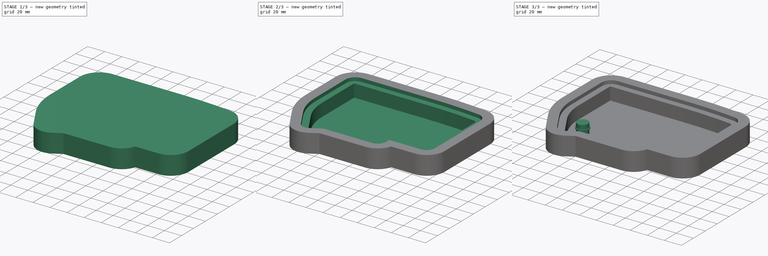
[diagram: build sequence overview — one tinted view per stage of 3, left to right]
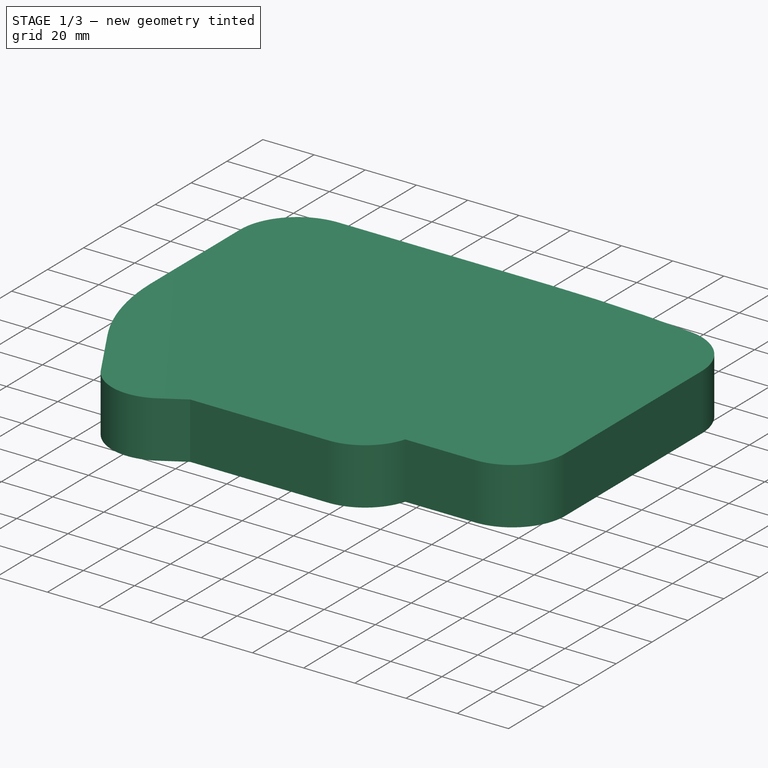
[diagram: stage 1 of 3 — iso view after this stage's code; geometry added in this stage tinted green]
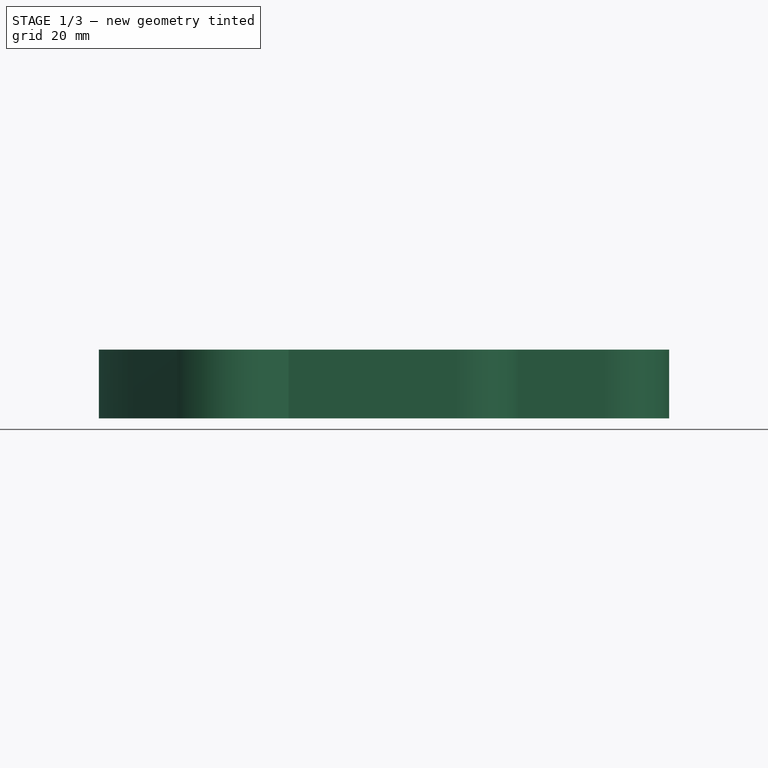
[diagram: stage 1 of 3 — front view after this stage's code; geometry added in this stage tinted green]
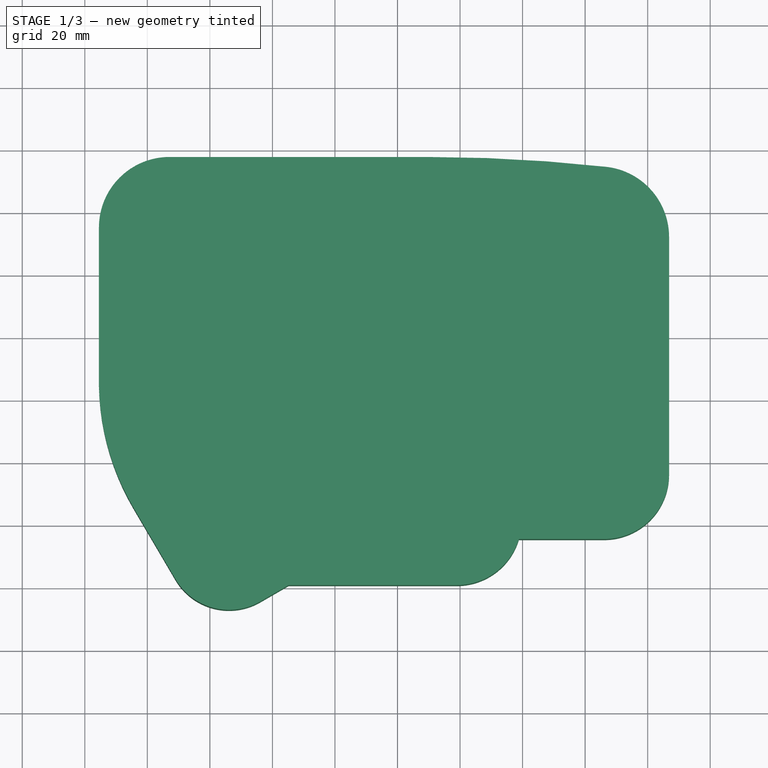
[diagram: stage 1 of 3 — top view after this stage's code; geometry added in this stage tinted green]
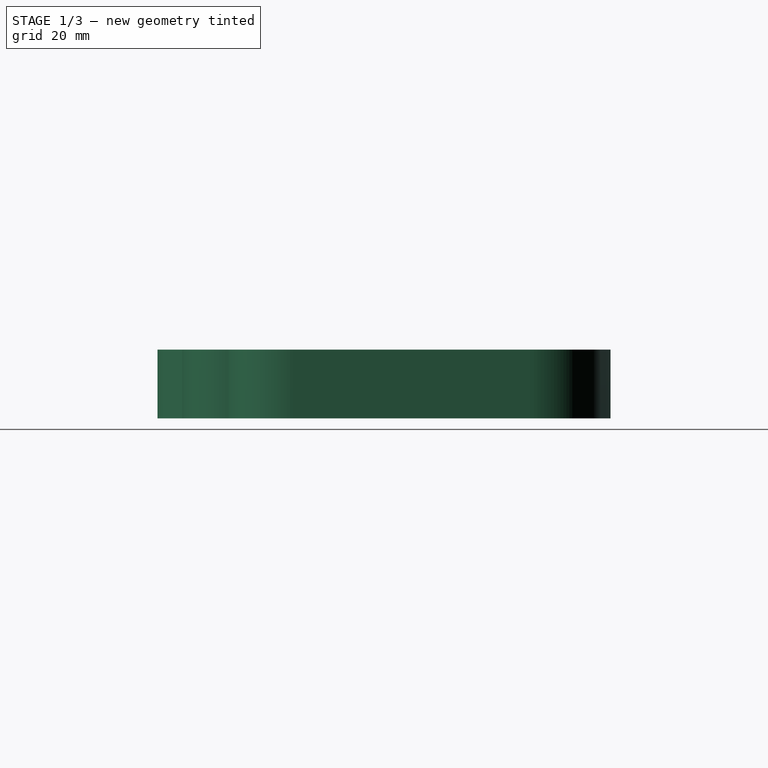
[diagram: stage 1 of 3 — right view after this stage's code; geometry added in this stage tinted green]
FCSTD DOCUMENT  (FreeCAD 0.21R33694 (Git))
Label: pro_switch_plate_gasket
License: All rights reserved
LicenseURL: http://en.wikipedia.org/wiki/All_rights_reserved
objects: Sketcher::SketchObject×8, App::Part×6, PartDesign::Pad×4, PartDesign::Body×4, Spreadsheet::Sheet×3, PartDesign::ShapeBinder×3, Part::Feature×2, PartDesign::Pocket×2, App::DocumentObjectGroup×1, PartDesign::CoordinateSystem×1
note: 30 computed .brp shape members not serialized (recipe doc carries the construction recipe); baked Part::Feature solids carry a one-line shape summary decoded from their .brp

FEATURE [PartDesign::Body] Body003  label="b_gx_12"
  Group = -> [Sketch004,Pad002,Sketch005,Pad003]
  Origin = -> Origin009
  Tip = -> Pad003
FEATURE [App::Part] Part002  label="gx12_chassis_mount"
  Group = -> [Body003]
  Origin = -> Origin008
FEATURE [Part::Feature] Board_outline
  Placement = pos=(-117.861,133.561,1.6) rot=(0,0,1;0rad)
  shape: bbox 142.5 x 106.3 x 1.6 mm, 253 faces (baked)
FEATURE [PartDesign::ShapeBinder] ShapeBinder002
  Placement = pos=(-117.861,133.561,1.6) rot=(0,0,1;0rad)
  Support = -> [Board_outline]
  TraceSupport = false
FEATURE [Sketcher::SketchObject] Sketch008  label="s_top_plate001"
  ExternalGeometry = -> [ShapeBinder002]
  FullyConstrained = true
  MapMode = 5
  Support = -> [XY_Plane010]
  expr: Constraints[85] = <<ss_top_plate>>.gasket_width
  sketch-geometry (162):
    g0: LineSegment StartX=-7.18067 StartY=48.167 StartZ=0 EndX=-7.18067 EndY=96.2113 EndZ=0
    g1: LineSegment StartX=-4.96703 StartY=98.4249 StartZ=0 EndX=49.3877 EndY=98.4249 EndZ=0
    g2: LineSegment StartX=107.597 StartY=92.0749 StartZ=0 EndX=107.597 EndY=16.2219 EndZ=0
    g3: LineSegment StartX=60.4562 StartY=11.2219 StartZ=0 EndX=60.4562 EndY=1.47761 EndZ=0
    g4: LineSegment StartX=58.9786 StartY=0 StartZ=0 EndX=0 EndY=-1.7e-15 EndZ=0
    g5: LineSegment StartX=0 StartY=-1.7e-15 StartZ=0 EndX=-13.5474 EndY=-7.8417 EndZ=0
    g6: LineSegment StartX=-14.4169 StartY=-7.61282 StartZ=0 EndX=-27.8698 EndY=15.2794 EndZ=0
    g7: LineSegment StartX=63.9562 StartY=14.7219 StartZ=0 EndX=106.097 EndY=14.7219 EndZ=0
    g8: LineSegment StartX=-7.18067 StartY=48.167 StartZ=0 EndX=-32.7254 EndY=48.1671 EndZ=0
    g9: ArcOfCircle CenterX=24.5137 CenterY=46.0634 CenterZ=0 NormalX=0 NormalY=0 NormalZ=1 AngleXU=0 Radius=60.7592 StartAngle=3.16603 EndAngle=3.67289
    g10: ArcOfCircle CenterX=-32.7254 CenterY=44.6641 CenterZ=0 NormalX=0 NormalY=0 NormalZ=1 AngleXU=0 Radius=3.50304 StartAngle=1.57079 EndAngle=3.16603
    g11: ArcOfCircle CenterX=49.3877 CenterY=-404.987 CenterZ=0 NormalX=0 NormalY=0 NormalZ=1 AngleXU=0 Radius=503.412 StartAngle=1.46083 EndAngle=1.5708
    g12: ArcOfCircle CenterX=104.267 CenterY=92.0749 CenterZ=0 NormalX=0 NormalY=0 NormalZ=1 AngleXU=0 Radius=3.32961 StartAngle=1.7e-15 EndAngle=1.46083
    g13: ArcOfCircle CenterX=-13.8669 CenterY=-7.28964 CenterZ=0 NormalX=0 NormalY=0 NormalZ=1 AngleXU=0 Radius=0.637877 StartAngle=3.67289 EndAngle=5.2371
    g14: ArcOfCircle CenterX=58.9786 CenterY=1.47761 CenterZ=0 NormalX=0 NormalY=0 NormalZ=1 AngleXU=0 Radius=1.47761 StartAngle=4.71239 EndAngle=6.28319
    g15: ArcOfCircle CenterX=63.9562 CenterY=11.2219 CenterZ=0 NormalX=0 NormalY=0 NormalZ=1 AngleXU=0 Radius=3.5 StartAngle=1.5708 EndAngle=3.14159
    g16: ArcOfCircle CenterX=106.097 CenterY=16.2219 CenterZ=0 NormalX=0 NormalY=0 NormalZ=1 AngleXU=0 Radius=1.5 StartAngle=4.71239 EndAngle=6.28319
    g17: ArcOfCircle CenterX=-4.96703 CenterY=96.2113 CenterZ=0 NormalX=0 NormalY=0 NormalZ=1 AngleXU=0 Radius=2.21364 StartAngle=1.5708 EndAngle=3.14159
    g18: LineSegment StartX=-36.2274 StartY=44.5785 StartZ=0 EndX=-34.8471 EndY=44.5785 EndZ=0
    g19: LineSegment StartX=-7.19043 StartY=105.425 StartZ=0 EndX=49.3877 EndY=105.425 EndZ=0
    g20: LineSegment StartX=114.597 StartY=92.0749 StartZ=0 EndX=114.597 EndY=16.2219 EndZ=0
    g21: LineSegment StartX=106.097 StartY=7.72193 StartZ=0 EndX=67.4562 EndY=7.72193 EndZ=0
    g22: LineSegment StartX=67.4562 StartY=7.72193 StartZ=0 EndX=67.4562 EndY=1.47761 EndZ=0
    g23: LineSegment StartX=58.9786 StartY=-7 StartZ=0 EndX=1.87982 EndY=-7 EndZ=0
    g24: LineSegment StartX=1.87982 StartY=-7 StartZ=0 EndX=-10.0406 EndY=-13.9 EndZ=0
    g25: LineSegment StartX=-20.4519 StartY=-11.1594 StartZ=0 EndX=-33.9049 EndY=11.7328 EndZ=0
    g26: ArcOfCircle CenterX=104.267 CenterY=92.0749 CenterZ=0 NormalX=0 NormalY=0 NormalZ=1 AngleXU=0 Radius=10.3296 StartAngle=3e-16 EndAngle=1.46083
    g27: ArcOfCircle CenterX=49.3877 CenterY=-404.987 CenterZ=0 NormalX=0 NormalY=0 NormalZ=1 AngleXU=0 Radius=510.412 StartAngle=1.46083 EndAngle=1.5708
    g28: ArcOfCircle CenterX=24.5137 CenterY=46.0634 CenterZ=0 NormalX=0 NormalY=0 NormalZ=1 AngleXU=0 Radius=67.7592 StartAngle=3.16351 EndAngle=3.67289
    g29: ArcOfCircle CenterX=-13.8669 CenterY=-7.28964 CenterZ=0 NormalX=0 NormalY=0 NormalZ=1 AngleXU=0 Radius=7.63788 StartAngle=3.67289 EndAngle=5.2371
    g30: ArcOfCircle CenterX=58.9786 CenterY=1.47761 CenterZ=0 NormalX=0 NormalY=0 NormalZ=1 AngleXU=0 Radius=8.47761 StartAngle=4.71239 EndAngle=6.28319
    g31: ArcOfCircle CenterX=106.097 CenterY=16.2219 CenterZ=0 NormalX=0 NormalY=0 NormalZ=1 AngleXU=0 Radius=8.5 StartAngle=4.71239 EndAngle=6.28319
    g32: LineSegment StartX=106.097 StartY=7.72193 StartZ=0 EndX=106.097 EndY=14.7219 EndZ=0
    g33: LineSegment StartX=58.9786 StartY=-7 StartZ=0 EndX=58.9786 EndY=0 EndZ=0
    g34: LineSegment StartX=-10.0406 StartY=-13.9 StartZ=0 EndX=-13.5474 EndY=-7.8417 EndZ=0
    g35: LineSegment StartX=-33.9049 StartY=11.7328 StartZ=0 EndX=-27.8698 EndY=15.2794 EndZ=0
    g36: LineSegment StartX=-7.19043 StartY=105.425 StartZ=0 EndX=-7.18067 EndY=50.367 EndZ=0
    g37: LineSegment StartX=-9.38028 StartY=48.167 StartZ=0 EndX=-39.7185 EndY=48.167 EndZ=0
    g38: ArcOfCircle CenterX=-39.7185 CenterY=44.6554 CenterZ=0 NormalX=0 NormalY=0 NormalZ=1 AngleXU=0 Radius=3.5116 StartAngle=1.5708 EndAngle=3.16351
    g39: ArcOfCircle CenterX=-9.38028 CenterY=50.3666 CenterZ=0 NormalX=0 NormalY=0 NormalZ=1 AngleXU=0 Radius=2.19961 StartAngle=4.71239 EndAngle=6.28336
    g40: LineSegment StartX=49.3877 StartY=98.4249 StartZ=0 EndX=49.3877 EndY=105.425 EndZ=0
    g41: LineSegment StartX=-23.4618 StartY=45.0111 StartZ=0 EndX=-9.50962 EndY=45.0111 EndZ=0
    g42: LineSegment StartX=-9.50962 StartY=45.0111 StartZ=0 EndX=-9.50962 EndY=31.0111 EndZ=0
    g43: LineSegment StartX=-9.50962 StartY=31.0111 StartZ=0 EndX=-23.4618 EndY=31.0111 EndZ=0
    g44: LineSegment StartX=-23.4618 StartY=31.0111 StartZ=0 EndX=-23.4618 EndY=45.0111 EndZ=0
    g45: LineSegment StartX=-4.3622 StartY=92.5114 StartZ=0 EndX=9.638 EndY=92.5114 EndZ=0
    g46: LineSegment StartX=9.638 StartY=92.5114 StartZ=0 EndX=9.638 EndY=78.5113 EndZ=0
    g47: LineSegment StartX=9.638 StartY=78.5113 StartZ=0 EndX=-4.3622 EndY=78.5113 EndZ=0
    g48: LineSegment StartX=-4.3622 StartY=78.5113 StartZ=0 EndX=-4.3622 EndY=92.5114 EndZ=0
    g49: LineSegment StartX=14.6381 StartY=94.9117 StartZ=0 EndX=28.6383 EndY=94.9117 EndZ=0
    g50: LineSegment StartX=28.6383 StartY=94.9117 StartZ=0 EndX=28.6383 EndY=80.9116 EndZ=0
    g51: LineSegment StartX=28.6383 StartY=80.9116 StartZ=0 EndX=14.6381 EndY=80.9116 EndZ=0
    g52: LineSegment StartX=14.6381 StartY=80.9116 StartZ=0 EndX=14.6381 EndY=94.9117 EndZ=0
    g53: LineSegment StartX=33.668 StartY=96.301 StartZ=0 EndX=47.6682 EndY=96.301 EndZ=0
    g54: LineSegment StartX=47.6682 StartY=96.301 StartZ=0 EndX=47.6682 EndY=82.301 EndZ=0
    g55: LineSegment StartX=47.6682 StartY=82.301 StartZ=0 EndX=33.668 EndY=82.301 EndZ=0
    g56: LineSegment StartX=33.668 StartY=82.301 StartZ=0 EndX=33.668 EndY=96.301 EndZ=0
    g57: LineSegment StartX=52.7428 StartY=94.9117 StartZ=0 EndX=66.743 EndY=94.9117 EndZ=0
    g58: LineSegment StartX=66.743 StartY=94.9117 StartZ=0 EndX=66.743 EndY=80.9116 EndZ=0
    g59: LineSegment StartX=66.743 StartY=80.9116 StartZ=0 EndX=52.7428 EndY=80.9116 EndZ=0
    g60: LineSegment StartX=52.7428 StartY=80.9116 StartZ=0 EndX=52.7428 EndY=94.9117 EndZ=0
    g61: LineSegment StartX=71.8388 StartY=90.1111 StartZ=0 EndX=85.839 EndY=90.1111 EndZ=0
    g62: LineSegment StartX=85.839 StartY=90.1111 StartZ=0 EndX=85.839 EndY=76.111 EndZ=0
    g63: LineSegment StartX=85.839 StartY=76.111 StartZ=0 EndX=71.8388 EndY=76.111 EndZ=0
    g64: LineSegment StartX=71.8388 StartY=76.111 StartZ=0 EndX=71.8388 EndY=90.1111 EndZ=0
    g65: LineSegment StartX=90.8367 StartY=88.6116 StartZ=0 EndX=104.837 EndY=88.6116 EndZ=0
    g66: LineSegment StartX=104.837 StartY=88.6116 StartZ=0 EndX=104.837 EndY=74.6112 EndZ=0
    g67: LineSegment StartX=104.837 StartY=74.6112 StartZ=0 EndX=90.8367 EndY=74.6112 EndZ=0
    g68: LineSegment StartX=90.8367 StartY=74.6112 StartZ=0 EndX=90.8367 EndY=88.6116 EndZ=0
    g69: LineSegment StartX=-4.36118 StartY=73.41 StartZ=0 EndX=9.63902 EndY=73.41 EndZ=0
    g70: LineSegment StartX=9.63902 StartY=73.41 StartZ=0 EndX=9.63902 EndY=59.41 EndZ=0
    g71: LineSegment StartX=9.63902 StartY=59.41 StartZ=0 EndX=-4.36118 EndY=59.41 EndZ=0
    g72: LineSegment StartX=-4.36118 StartY=59.41 StartZ=0 EndX=-4.36118 EndY=73.41 EndZ=0
    g73: LineSegment StartX=14.6381 StartY=75.8109 StartZ=0 EndX=28.6383 EndY=75.8109 EndZ=0
    g74: LineSegment StartX=28.6383 StartY=75.8109 StartZ=0 EndX=28.6383 EndY=61.8109 EndZ=0
    g75: LineSegment StartX=28.6383 StartY=61.8109 StartZ=0 EndX=14.6381 EndY=61.8109 EndZ=0
    g76: LineSegment StartX=14.6381 StartY=61.8109 StartZ=0 EndX=14.6381 EndY=75.8109 EndZ=0
    g77: LineSegment StartX=33.7389 StartY=77.2104 StartZ=0 EndX=47.7391 EndY=77.2104 EndZ=0
    g78: LineSegment StartX=47.7391 StartY=77.2104 StartZ=0 EndX=47.7391 EndY=63.2104 EndZ=0
    g79: LineSegment StartX=47.7391 StartY=63.2104 StartZ=0 EndX=33.7389 EndY=63.2104 EndZ=0
    g80: LineSegment StartX=33.7389 StartY=63.2104 StartZ=0 EndX=33.7389 EndY=77.2104 EndZ=0
    g81: LineSegment StartX=52.7369 StartY=75.9114 StartZ=0 EndX=66.7371 EndY=75.9114 EndZ=0
    g82: LineSegment StartX=66.7371 StartY=75.9114 StartZ=0 EndX=66.7371 EndY=61.9114 EndZ=0
    g83: LineSegment StartX=66.7371 StartY=61.9114 StartZ=0 EndX=52.7369 EndY=61.9114 EndZ=0
    g84: LineSegment StartX=52.7369 StartY=61.9114 StartZ=0 EndX=52.7369 EndY=75.9114 EndZ=0
    g85: LineSegment StartX=71.8376 StartY=71.211 StartZ=0 EndX=85.8378 EndY=71.211 EndZ=0
    g86: LineSegment StartX=85.8378 StartY=71.211 StartZ=0 EndX=85.8378 EndY=57.2109 EndZ=0
    g87: LineSegment StartX=85.8378 StartY=57.2109 StartZ=0 EndX=71.8376 EndY=57.2109 EndZ=0
    g88: LineSegment StartX=71.8376 StartY=57.2109 StartZ=0 EndX=71.8376 EndY=71.211 EndZ=0
    g89: LineSegment StartX=90.8367 StartY=69.7103 StartZ=0 EndX=104.837 EndY=69.7103 EndZ=0
    g90: LineSegment StartX=104.837 StartY=69.7103 StartZ=0 EndX=104.837 EndY=55.7123 EndZ=0
    g91: LineSegment StartX=104.837 StartY=55.7123 StartZ=0 EndX=90.8367 EndY=55.7123 EndZ=0
    g92: LineSegment StartX=90.8367 StartY=55.7123 StartZ=0 EndX=90.8367 EndY=69.7103 EndZ=0
    g93: LineSegment StartX=-4.3622 StartY=54.4129 StartZ=0 EndX=9.638 EndY=54.4129 EndZ=0
    g94: LineSegment StartX=9.638 StartY=54.4129 StartZ=0 EndX=9.638 EndY=40.4129 EndZ=0
    g95: LineSegment StartX=9.638 StartY=40.4129 StartZ=0 EndX=-4.3622 EndY=40.4129 EndZ=0
    g96: LineSegment StartX=-4.3622 StartY=40.4129 StartZ=0 EndX=-4.3622 EndY=54.4129 EndZ=0
    g97: LineSegment StartX=14.639 StartY=56.8099 StartZ=0 EndX=28.6392 EndY=56.8099 EndZ=0
    g98: LineSegment StartX=28.6392 StartY=56.8099 StartZ=0 EndX=28.6392 EndY=42.8099 EndZ=0
    g99: LineSegment StartX=28.6392 StartY=42.8099 StartZ=0 EndX=14.639 EndY=42.8099 EndZ=0
    g100: LineSegment StartX=14.639 StartY=42.8099 StartZ=0 EndX=14.639 EndY=56.8099 EndZ=0
    g101: LineSegment StartX=33.7389 StartY=58.1122 StartZ=0 EndX=47.7391 EndY=58.1122 EndZ=0
    g102: LineSegment StartX=47.7391 StartY=58.1122 StartZ=0 EndX=47.7391 EndY=44.1122 EndZ=0
    g103: LineSegment StartX=47.7391 StartY=44.1122 StartZ=0 EndX=33.7389 EndY=44.1122 EndZ=0
    g104: LineSegment StartX=33.7389 StartY=44.1122 StartZ=0 EndX=33.7389 EndY=58.1122 EndZ=0
    g105: LineSegment StartX=52.7389 StartY=56.8122 StartZ=0 EndX=66.7391 EndY=56.8122 EndZ=0
    g106: LineSegment StartX=66.7391 StartY=56.8122 StartZ=0 EndX=66.7391 EndY=42.8121 EndZ=0
    g107: LineSegment StartX=66.7391 StartY=42.8121 StartZ=0 EndX=52.7389 EndY=42.8121 EndZ=0
    g108: LineSegment StartX=52.7389 StartY=42.8121 StartZ=0 EndX=52.7389 EndY=56.8122 EndZ=0
    g109: LineSegment StartX=71.8238 StartY=52.0112 StartZ=0 EndX=85.824 EndY=52.0112 EndZ=0
    g110: LineSegment StartX=85.824 StartY=52.0112 StartZ=0 EndX=85.824 EndY=38.0111 EndZ=0
    g111: LineSegment StartX=85.824 StartY=38.0111 StartZ=0 EndX=71.8238 EndY=38.0111 EndZ=0
    g112: LineSegment StartX=71.8238 StartY=38.0111 StartZ=0 EndX=71.8238 EndY=52.0112 EndZ=0
    g113: LineSegment StartX=90.8388 StartY=50.51 StartZ=0 EndX=104.839 EndY=50.51 EndZ=0
    g114: LineSegment StartX=104.839 StartY=50.51 StartZ=0 EndX=104.839 EndY=36.5099 EndZ=0
    g115: LineSegment StartX=104.839 StartY=36.5099 StartZ=0 EndX=90.8388 EndY=36.5099 EndZ=0
    g116: LineSegment StartX=90.8388 StartY=36.5099 StartZ=0 EndX=90.8388 EndY=50.51 EndZ=0
    g117: LineSegment StartX=-4.3622 StartY=35.41 StartZ=0 EndX=9.638 EndY=35.41 EndZ=0
    g118: LineSegment StartX=9.638 StartY=35.41 StartZ=0 EndX=9.638 EndY=21.4099 EndZ=0
    g119: LineSegment StartX=9.638 StartY=21.4099 StartZ=0 EndX=-4.3622 EndY=21.4099 EndZ=0
    g120: LineSegment StartX=-4.3622 StartY=21.4099 StartZ=0 EndX=-4.3622 EndY=35.41 EndZ=0
    g121: LineSegment StartX=14.639 StartY=37.7114 StartZ=0 EndX=28.6392 EndY=37.7114 EndZ=0
    g122: LineSegment StartX=28.6392 StartY=37.7114 StartZ=0 EndX=28.6392 EndY=23.7114 EndZ=0
    g123: LineSegment StartX=28.6392 StartY=23.7114 StartZ=0 EndX=14.639 EndY=23.7114 EndZ=0
    g124: LineSegment StartX=14.639 StartY=23.7114 StartZ=0 EndX=14.639 EndY=37.7114 EndZ=0
    g125: LineSegment StartX=33.7377 StartY=39.112 StartZ=0 EndX=47.7379 EndY=39.112 EndZ=0
    g126: LineSegment StartX=47.7379 StartY=39.112 StartZ=0 EndX=47.7379 EndY=25.112 EndZ=0
    g127: LineSegment StartX=47.7379 StartY=25.112 StartZ=0 EndX=33.7377 EndY=25.112 EndZ=0
    g128: LineSegment StartX=33.7377 StartY=25.112 StartZ=0 EndX=33.7377 EndY=39.112 EndZ=0
    g129: LineSegment StartX=52.7382 StartY=37.7112 StartZ=0 EndX=66.7383 EndY=37.7112 EndZ=0
    g130: LineSegment StartX=66.7383 StartY=37.7112 StartZ=0 EndX=66.7383 EndY=23.7112 EndZ=0
    g131: LineSegment StartX=66.7383 StartY=23.7112 StartZ=0 EndX=52.7382 EndY=23.7112 EndZ=0
    g132: LineSegment StartX=52.7382 StartY=23.7112 StartZ=0 EndX=52.7382 EndY=37.7112 EndZ=0
    g133: LineSegment StartX=71.8386 StartY=33.0122 StartZ=0 EndX=85.8388 EndY=33.0122 EndZ=0
    g134: LineSegment StartX=85.8388 StartY=33.0122 StartZ=0 EndX=85.8388 EndY=19.0122 EndZ=0
    g135: LineSegment StartX=85.8388 StartY=19.0122 StartZ=0 EndX=71.8386 EndY=19.0122 EndZ=0
    g136: LineSegment StartX=71.8386 StartY=19.0122 StartZ=0 EndX=71.8386 EndY=33.0122 EndZ=0
    g137: LineSegment StartX=90.8876 StartY=31.5113 StartZ=0 EndX=104.888 EndY=31.5113 EndZ=0
    g138: LineSegment StartX=104.888 StartY=31.5113 StartZ=0 EndX=104.888 EndY=17.5113 EndZ=0
    g139: LineSegment StartX=104.888 StartY=17.5113 StartZ=0 EndX=90.8876 EndY=17.5113 EndZ=0
    g140: LineSegment StartX=90.8876 StartY=17.5113 StartZ=0 EndX=90.8876 EndY=31.5113 EndZ=0
    g141: LineSegment StartX=5.13738 StartY=16.5111 StartZ=0 EndX=19.1376 EndY=16.5111 EndZ=0
    g142: LineSegment StartX=19.1376 StartY=16.5111 StartZ=0 EndX=19.1376 EndY=2.51111 EndZ=0
    g143: LineSegment StartX=19.1376 StartY=2.51111 StartZ=0 EndX=5.13738 EndY=2.51111 EndZ=0
    g144: LineSegment StartX=5.13738 StartY=2.51111 StartZ=0 EndX=5.13738 EndY=16.5111 EndZ=0
    g145: LineSegment StartX=24.1379 StartY=18.7616 StartZ=0 EndX=38.1381 EndY=18.7616 EndZ=0
    g146: LineSegment StartX=38.1381 StartY=18.7616 StartZ=0 EndX=38.1381 EndY=4.76155 EndZ=0
    g147: LineSegment StartX=38.1381 StartY=4.76155 StartZ=0 EndX=24.1379 EndY=4.76155 EndZ=0
    g148: LineSegment StartX=24.1379 StartY=4.76155 StartZ=0 EndX=24.1379 EndY=18.7616 EndZ=0
    g149: LineSegment StartX=43.2384 StartY=18.7605 StartZ=0 EndX=57.2389 EndY=18.7605 EndZ=0
    g150: LineSegment StartX=57.2389 StartY=18.7605 StartZ=0 EndX=57.2389 EndY=4.76004 EndZ=0
    g151: LineSegment StartX=57.2389 StartY=4.76004 StartZ=0 EndX=43.2384 EndY=4.76004 EndZ=0
    g152: LineSegment StartX=43.2384 StartY=4.76004 StartZ=0 EndX=43.2384 EndY=18.7605 EndZ=0
    g153: LineSegment StartX=-22.4239 StartY=11.0738 StartZ=0 EndX=-10.2994 EndY=18.0739 EndZ=0
    g154: LineSegment StartX=-10.2994 StartY=18.0739 StartZ=0 EndX=-3.29934 EndY=5.94949 EndZ=0
    g155: LineSegment StartX=-3.29934 StartY=5.94949 StartZ=0 EndX=-15.4239 EndY=-1.0506 EndZ=0
    g156: LineSegment StartX=-15.4239 StartY=-1.0506 StartZ=0 EndX=-22.4239 EndY=11.0738 EndZ=0
    g157: Circle CenterX=11.7389 CenterY=75.8605 CenterZ=0 NormalX=0 NormalY=0 NormalZ=1 AngleXU=0 Radius=1.2
    g158: Circle CenterX=87.9389 CenterY=73.6605 CenterZ=0 NormalX=0 NormalY=0 NormalZ=1 AngleXU=0 Radius=1.2
    g159: Circle CenterX=87.9389 CenterY=35.4605 CenterZ=0 NormalX=0 NormalY=0 NormalZ=1 AngleXU=0 Radius=1.2
    g160: Circle CenterX=11.7389 CenterY=37.8605 CenterZ=0 NormalX=0 NormalY=0 NormalZ=1 AngleXU=0 Radius=1.2
    g161: Circle CenterX=-12.8611 CenterY=20.6605 CenterZ=0 NormalX=0 NormalY=0 NormalZ=1 AngleXU=0 Radius=1.2
  constraints (385):
    c: Vertical(g0)
    c: Coincident(g1,g-3)
    c: Horizontal(g1)
    c: Vertical(g2)
    c: Coincident(g4,g-8)
    c: Coincident(g4,g5)
    c: Coincident(g6,g-9)
    c: PointOnObject(g-8,g5)
    c: PointOnObject(g-7,g4)
    c: Horizontal(g7)
    c: Coincident(g8,g0)
    c: Tangent(g9,g6) = 1.5708
    c: Tangent(g9,g10) = -1.5708
    c: Tangent(g8,g10) = -1.5708
    c: Tangent(g11,g1) = 1.5708
    c: PointOnObject(g-13,g11)
    c: Tangent(g11,g12) = -1.5708
    c: Tangent(g2,g12) = 1.5708
    c: Coincident(g2,g-4)
    c: Tangent(g5,g13) = 1.5708
    c: Tangent(g6,g13) = 1.5708
    c: Coincident(g6,g-9)
    c: Tangent(g4,g14) = 1.5708
    c: Tangent(g3,g14) = 1.5708
    c: Tangent(g3,g15) = -1.5708
    c: Tangent(g7,g15) = 1.5708
    c: Tangent(g7,g16) = -1.5708
    c: Tangent(g2,g16) = 1.5708
    c: Coincident(g7,g-5)
    c: Coincident(g3,g-6)
    c: Coincident(g3,g-6)
    c: Coincident(g8,g-10)
    c: Tangent(g0,g17) = 1.5708
    c: Tangent(g1,g17) = 1.5708
    c: Coincident(g0,g-11)
    c: Coincident(g18,g9)
    c: Coincident(g18,g-12)
    c: Horizontal(g18)
    c: Horizontal(g19)
    c: Vertical(g20)
    c: Horizontal(g21)
    c: Coincident(g21,g22)
    c: Vertical(g22)
    c: Horizontal(g23)
    c: Coincident(g23,g24)
    c: Coincident(g27,g11)
    c: Tangent(g27,g19) = 1.5708
    c: Tangent(g27,g26) = -1.5708
    c: Tangent(g26,g20) = 1.5708
    c: Coincident(g28,g9)
    c: Coincident(g28,g25)
    c: Tangent(g25,g29) = 1.5708
    c: Tangent(g24,g29) = 1.5708
    c: Tangent(g23,g30) = 1.5708
    c: Tangent(g22,g30) = 1.5708
    c: Tangent(g21,g31) = 1.5708
    c: Tangent(g20,g31) = 1.5708
    c: Coincident(g31,g16)
    c: Coincident(g26,g12)
    c: Coincident(g29,g13)
    c: Parallel(g24,g5)
    c: Parallel(g6,g25)
    c: Coincident(g30,g14)
    c: Coincident(g32,g21)
    c: Coincident(g32,g7)
    c: Coincident(g33,g23)
    c: Coincident(g33,g4)
    c: Coincident(g34,g24)
    c: Coincident(g34,g5)
    c: Coincident(g35,g25)
    c: Coincident(g35,g6)
    c: Perpendicular(g6,g35)
    c: Coincident(g36,g19)
    c: Horizontal(g37)
    c: Tangent(g28,g38) = -1.5708
    c: Tangent(g37,g38) = -1.5708
    c: Horizontal(g28,g9)
    c: Tangent(g36,g39) = 1.5708
    c: Tangent(g37,g39) = 1.5708
    c: Coincident(g37,g-10)
    c: Coincident(g36,g-11)
    c: Coincident(g40,g1)
    c: Coincident(g40,g19)
    c: Equal(g32,g33)
    c: Equal(g33,g34)
    c: DistanceY(g40,g40) = 7
    c: PointOnObject(g37,g8)
    c: Coincident(g41,g42)
    c: Coincident(g42,g43)
    c: Coincident(g43,g44)
    c: Coincident(g44,g41)
    c: Horizontal(g41)
    c: Horizontal(g43)
    c: Vertical(g42)
    c: Vertical(g44)
    c: Coincident(g41,g-16)
    c: Coincident(g42,g-17)
    c: Coincident(g45,g46)
    c: Coincident(g46,g47)
    c: Coincident(g47,g48)
    c: Coincident(g48,g45)
    c: Horizontal(g45)
    c: Horizontal(g47)
    c: Vertical(g46)
    c: Vertical(g48)
    c: Coincident(g45,g-18)
    c: Coincident(g46,g-19)
    c: Coincident(g49,g50)
    c: Coincident(g50,g51)
    c: Coincident(g51,g52)
    c: Coincident(g52,g49)
    c: Horizontal(g49)
    c: Horizontal(g51)
    c: Vertical(g50)
    c: Vertical(g52)
    c: Coincident(g49,g-20)
    c: Coincident(g50,g-21)
    c: Coincident(g53,g54)
    c: Coincident(g54,g55)
    c: Coincident(g55,g56)
    c: Coincident(g56,g53)
    c: Horizontal(g53)
    c: Horizontal(g55)
    c: Vertical(g54)
    c: Vertical(g56)
    c: Coincident(g53,g-22)
    c: Coincident(g54,g-23)
    c: Coincident(g57,g58)
    c: Coincident(g58,g59)
    c: Coincident(g59,g60)
    c: Coincident(g60,g57)
    c: Horizontal(g57)
    c: Horizontal(g59)
    c: Vertical(g58)
    c: Vertical(g60)
    c: Coincident(g57,g-24)
    c: Coincident(g58,g-25)
    c: Coincident(g61,g62)
    c: Coincident(g62,g63)
    c: Coincident(g63,g64)
    c: Coincident(g64,g61)
    c: Horizontal(g61)
    c: Horizontal(g63)
    c: Vertical(g62)
    c: Vertical(g64)
    c: Coincident(g61,g-26)
    c: Coincident(g62,g-27)
    c: Coincident(g65,g66)
    c: Coincident(g66,g67)
    c: Coincident(g67,g68)
    c: Coincident(g68,g65)
    c: Horizontal(g65)
    c: Horizontal(g67)
    c: Vertical(g66)
    c: Vertical(g68)
    c: Coincident(g65,g-28)
    c: Coincident(g66,g-29)
    c: Coincident(g69,g70)
    c: Coincident(g70,g71)
    c: Coincident(g71,g72)
    c: Coincident(g72,g69)
    c: Horizontal(g69)
    c: Horizontal(g71)
    c: Vertical(g70)
    c: Vertical(g72)
    c: Coincident(g69,g-40)
    c: Coincident(g70,g-41)
    c: Coincident(g73,g74)
    c: Coincident(g74,g75)
    c: Coincident(g75,g76)
    c: Coincident(g76,g73)
    c: Horizontal(g73)
    c: Horizontal(g75)
    c: Vertical(g74)
    c: Vertical(g76)
    c: Coincident(g73,g-38)
    c: Coincident(g74,g-39)
    c: Coincident(g77,g78)
    c: Coincident(g78,g79)
    c: Coincident(g79,g80)
    c: Coincident(g80,g77)
    c: Horizontal(g77)
    c: Horizontal(g79)
    c: Vertical(g78)
    c: Vertical(g80)
    c: Coincident(g77,g-37)
    c: Coincident(g78,g-36)
    c: Coincident(g81,g82)
    c: Coincident(g82,g83)
    c: Coincident(g83,g84)
    c: Coincident(g84,g81)
    c: Horizontal(g81)
    c: Horizontal(g83)
    c: Vertical(g82)
    c: Vertical(g84)
    c: Coincident(g81,g-34)
    c: Coincident(g82,g-35)
    c: Coincident(g85,g86)
    c: Coincident(g86,g87)
    c: Coincident(g87,g88)
    c: Coincident(g88,g85)
    c: Horizontal(g85)
    c: Horizontal(g87)
    c: Vertical(g86)
    c: Vertical(g88)
    c: Coincident(g85,g-33)
    c: Coincident(g86,g-32)
    c: Coincident(g89,g90)
    c: Coincident(g90,g91)
    c: Coincident(g91,g92)
    c: Coincident(g92,g89)
    c: Horizontal(g89)
    c: Horizontal(g91)
    c: Vertical(g90)
    c: Vertical(g92)
    c: Coincident(g89,g-30)
    c: Coincident(g90,g-31)
    c: Coincident(g93,g94)
    c: Coincident(g94,g95)
    c: Coincident(g95,g96)
    c: Coincident(g96,g93)
    c: Horizontal(g93)
    c: Horizontal(g95)
    c: Vertical(g94)
    c: Vertical(g96)
    c: Coincident(g93,g-45)
    c: Coincident(g94,g-44)
    c: Coincident(g97,g98)
    c: Coincident(g98,g99)
    c: Coincident(g99,g100)
    c: Coincident(g100,g97)
    c: Horizontal(g97)
    c: Horizontal(g99)
    c: Vertical(g98)
    c: Vertical(g100)
    c: Coincident(g97,g-46)
    c: Coincident(g98,g-48)
    c: Coincident(g101,g102)
    c: Coincident(g102,g103)
    c: Coincident(g103,g104)
    c: Coincident(g104,g101)
    c: Horizontal(g101)
    c: Horizontal(g103)
    c: Vertical(g102)
    c: Vertical(g104)
    c: Coincident(g101,g-47)
    c: Coincident(g102,g-49)
    c: Coincident(g105,g106)
    c: Coincident(g106,g107)
    c: Coincident(g107,g108)
    c: Coincident(g108,g105)
    c: Horizontal(g105)
    c: Horizontal(g107)
    c: Vertical(g106)
    c: Vertical(g108)
    c: Coincident(g105,g-50)
    c: Coincident(g106,g-51)
    c: Coincident(g109,g110)
    c: Coincident(g110,g111)
    c: Coincident(g111,g112)
    c: Coincident(g112,g109)
    c: Horizontal(g109)
    c: Horizontal(g111)
    c: Vertical(g110)
    c: Vertical(g112)
    c: Coincident(g109,g-52)
    c: Coincident(g110,g-53)
    c: Coincident(g113,g114)
    c: Coincident(g114,g115)
    c: Coincident(g115,g116)
    c: Coincident(g116,g113)
    c: Horizontal(g113)
    c: Horizontal(g115)
    c: Vertical(g114)
    c: Vertical(g116)
    c: Coincident(g113,g-54)
    c: Coincident(g114,g-55)
    c: Coincident(g117,g118)
    c: Coincident(g118,g119)
    c: Coincident(g119,g120)
    c: Coincident(g120,g117)
    c: Horizontal(g117)
    c: Horizontal(g119)
    c: Vertical(g118)
    c: Vertical(g120)
    c: Coincident(g117,g-66)
    c: Coincident(g118,g-67)
    c: Coincident(g121,g122)
    c: Coincident(g122,g123)
    c: Coincident(g123,g124)
    c: Coincident(g124,g121)
    c: Horizontal(g121)
    c: Horizontal(g123)
    c: Vertical(g122)
    c: Vertical(g124)
    c: Coincident(g121,g-64)
    c: Coincident(g122,g-65)
    c: Coincident(g125,g126)
    c: Coincident(g126,g127)
    c: Coincident(g127,g128)
    c: Coincident(g128,g125)
    c: Horizontal(g125)
    c: Horizontal(g127)
    c: Vertical(g126)
    c: Vertical(g128)
    c: Coincident(g125,g-62)
    c: Coincident(g126,g-63)
    c: Coincident(g129,g130)
    c: Coincident(g130,g131)
    c: Coincident(g131,g132)
    c: Coincident(g132,g129)
    c: Horizontal(g129)
    c: Horizontal(g131)
    c: Vertical(g130)
    c: Vertical(g132)
    c: Coincident(g129,g-60)
    c: Coincident(g130,g-61)
    c: Coincident(g133,g134)
    c: Coincident(g134,g135)
    c: Coincident(g135,g136)
    c: Coincident(g136,g133)
    c: Horizontal(g133)
    c: Horizontal(g135)
    c: Vertical(g134)
    c: Vertical(g136)
    c: Coincident(g133,g-58)
    c: Coincident(g134,g-59)
    c: Coincident(g137,g138)
    c: Coincident(g138,g139)
    c: Coincident(g139,g140)
    c: Coincident(g140,g137)
    c: Horizontal(g137)
    c: Horizontal(g139)
    c: Vertical(g138)
    c: Vertical(g140)
    c: Coincident(g137,g-56)
    c: Coincident(g138,g-57)
    c: Coincident(g141,g142)
    c: Coincident(g142,g143)
    c: Coincident(g143,g144)
    c: Coincident(g144,g141)
    c: Horizontal(g141)
    c: Horizontal(g143)
    c: Vertical(g142)
    c: Vertical(g144)
    c: Coincident(g141,g-74)
    c: Coincident(g142,g-75)
    c: Coincident(g145,g146)
    c: Coincident(g146,g147)
    c: Coincident(g147,g148)
    c: Coincident(g148,g145)
    c: Horizontal(g145)
    c: Horizontal(g147)
    c: Vertical(g146)
    c: Vertical(g148)
    c: Coincident(g145,g-72)
    c: Coincident(g146,g-73)
    c: Coincident(g149,g150)
    c: Coincident(g150,g151)
    c: Coincident(g151,g152)
    c: Coincident(g152,g149)
    c: Horizontal(g149)
    c: Horizontal(g151)
    c: Vertical(g150)
    c: Vertical(g152)
    c: Coincident(g149,g-70)
    c: Coincident(g150,g-71)
    c: Coincident(g-14,g153)
    c: Coincident(g153,g-14)
    c: Coincident(g153,g154)
    c: Coincident(g154,g-15)
    c: Coincident(g154,g155)
    c: Coincident(g155,g-15)
    c: Coincident(g155,g156)
    c: Coincident(g156,g153)
    c: Coincident(g157,g-42)
    c: Coincident(g158,g-43)
    c: Coincident(g159,g-69)
    c: Coincident(g160,g-68)
    c: Coincident(g161,g-76)
    c: Equal(g157,g158)
    c: Equal(g158,g159)
    c: Equal(g159,g160)
    c: Equal(g160,g-76)
    c: Equal(g-76,g161)
FEATURE [PartDesign::Body] Body005  label="Body"
  Origin = -> Origin011
FEATURE [PartDesign::Pad] Pad005  label="p_top_plate"
  Direction = (0,0,1)
  Length = 3
  Length2 = 10
  Profile = -> Sketch008
  ReferenceAxis = -> Sketch008 [N_Axis]
  Type = 0
  expr: Length = <<ss_top_plate>>.thickness
FEATURE [PartDesign::Body] Body004  label="top_plate_no_spline"
  Group = -> [ShapeBinder002,Sketch008,Pad005]
  Origin = -> Origin010
  Tip = -> Pad005
FEATURE [App::Part] Part  label="top_plate"
  Group = -> [Board_outline,Body004,Spreadsheet]
  Origin = -> Origin
FEATURE [PartDesign::ShapeBinder] ShapeBinder001
  Placement = pos=(-117.862,135.511,1.6) rot=(0,0,1;0rad)
  Support = -> [Pcb_f218]
  TraceSupport = false
FEATURE [Sketcher::SketchObject] Sketch  label="s_pcb_master"
  ExternalGeometry = -> [ShapeBinder001]
  FullyConstrained = true
  MapMode = 5
  Support = -> [XY_Plane003]
  sketch-geometry (16):
    g0: LineSegment StartX=-34.9248 StartY=46.9184 StartZ=0 EndX=-34.9241 EndY=97.3739 EndZ=0
    g1: LineSegment StartX=-33.8741 StartY=98.4239 StartZ=0 EndX=49.3886 EndY=98.4239 EndZ=0
    g2: LineSegment StartX=107.598 StartY=92.0739 StartZ=0 EndX=107.598 EndY=16.2209 EndZ=0
    g3: LineSegment StartX=106.098 StartY=14.7209 StartZ=0 EndX=63.957 EndY=14.7209 EndZ=0
    g4: LineSegment StartX=60.457 StartY=11.2209 StartZ=0 EndX=60.457 EndY=1.49899 EndZ=0
    g5: LineSegment StartX=58.958 StartY=0 StartZ=0 EndX=0 EndY=0 EndZ=0
    g6: LineSegment StartX=0 StartY=0 StartZ=0 EndX=-13.4905 EndY=-7.81026 EndZ=0
    g7: LineSegment StartX=-14.3705 StartY=-7.57751 StartZ=0 EndX=-27.869 EndY=15.5211 EndZ=0
    g8: ArcOfCircle CenterX=-13.8136 CenterY=-7.25208 CenterZ=0 NormalX=0 NormalY=0 NormalZ=1 AngleXU=0 Radius=0.644979 StartAngle=3.67045 EndAngle=5.23718
    g9: ArcOfCircle CenterX=58.958 CenterY=1.49899 CenterZ=0 NormalX=0 NormalY=0 NormalZ=1 AngleXU=0 Radius=1.49899 StartAngle=4.71239 EndAngle=6.28319
    g10: ArcOfCircle CenterX=63.957 CenterY=11.2209 CenterZ=0 NormalX=0 NormalY=0 NormalZ=1 AngleXU=0 Radius=3.5 StartAngle=1.5708 EndAngle=3.14159
    g11: ArcOfCircle CenterX=106.098 CenterY=16.2209 CenterZ=0 NormalX=0 NormalY=0 NormalZ=1 AngleXU=0 Radius=1.5 StartAngle=4.71239 EndAngle=6.28319
    g12: ArcOfCircle CenterX=-33.8741 CenterY=97.3739 CenterZ=0 NormalX=0 NormalY=0 NormalZ=1 AngleXU=0 Radius=1.05001 StartAngle=1.5708 EndAngle=3.14158
    g13: ArcOfCircle CenterX=38.4554 CenterY=46.9174 CenterZ=0 NormalX=0 NormalY=0 NormalZ=1 AngleXU=0 Radius=73.3802 StartAngle=3.14158 EndAngle=3.58371
    g14: ArcOfCircle CenterX=49.3886 CenterY=-417.124 CenterZ=0 NormalX=0 NormalY=0 NormalZ=1 AngleXU=0 Radius=515.548 StartAngle=1.46359 EndAngle=1.5708
    g15: ArcOfCircle CenterX=104.188 CenterY=92.0739 CenterZ=0 NormalX=0 NormalY=0 NormalZ=1 AngleXU=0 Radius=3.40976 StartAngle=6.28319 EndAngle=7.74678
  constraints (32):
    c: Coincident(g-16,g0)
    c: Coincident(g1,g-5)
    c: Horizontal(g1)
    c: Horizontal(g3)
    c: Coincident(g5,g-13)
    c: Horizontal(g5)
    c: Coincident(g5,g6)
    c: Coincident(g7,g-15)
    c: Tangent(g7,g8) = 1.5708
    c: Tangent(g6,g8) = 1.5708
    c: PointOnObject(g-12,g6)
    c: Coincident(g7,g-17)
    c: Tangent(g5,g9) = 1.5708
    c: Tangent(g4,g9) = 1.5708
    c: Tangent(g4,g10) = -1.5708
    c: Tangent(g3,g10) = -1.5708
    c: Tangent(g3,g11) = 1.5708
    c: Tangent(g2,g11) = 1.5708
    c: Tangent(g0,g12) = 1.5708
    c: Tangent(g1,g12) = 1.5708
    c: Coincident(g0,g-3)
    c: Coincident(g3,g-7)
    c: Coincident(g4,g-8)
    c: Vertical(g4)
    c: Coincident(g2,g-10)
    c: Coincident(g13,g7)
    c: Tangent(g13,g0) = 1.5708
    c: Tangent(g14,g1) = 1.5708
    c: Tangent(g14,g15) = -1.5708
    c: Tangent(g2,g15) = 1.5708
    c: Coincident(g2,g-6)
    c: PointOnObject(g-18,g14)
FEATURE [PartDesign::ShapeBinder] ShapeBinder  label="sb_top_plate"
  Support = -> [Pad005]
  TraceSupport = false
FEATURE [Sketcher::SketchObject] Sketch009
  ExternalGeometry = -> [ShapeBinder]
  FullyConstrained = true
  MapMode = 5
  Support = -> [XY_Plane003]
  expr: Constraints[39] = <<ss_case>>.wall_offset
  sketch-geometry (20):
    g0: LineSegment StartX=-32.9022 StartY=117.675 StartZ=0 EndX=49.3877 EndY=117.675 EndZ=0
    g1: LineSegment StartX=-55.4818 StartY=95.0953 StartZ=0 EndX=-55.4818 EndY=44.5785 EndZ=0
    g2: LineSegment StartX=-44.4662 StartY=5.5263 StartZ=0 EndX=-31.0133 EndY=-17.3659 EndZ=0
    g3: LineSegment StartX=-3.90385 StartY=-24.502 StartZ=0 EndX=5.1695 EndY=-19.25 EndZ=0
    g4: LineSegment StartX=5.1695 StartY=-19.25 StartZ=0 EndX=58.9786 EndY=-19.25 EndZ=0
    g5: LineSegment StartX=78.817 StartY=-4.52807 StartZ=0 EndX=106.097 EndY=-4.52807 EndZ=0
    g6: LineSegment StartX=126.847 StartY=16.2219 StartZ=0 EndX=126.847 EndY=92.0749 EndZ=0
    g7: ArcOfCircle CenterX=104.267 CenterY=92.0749 CenterZ=0 NormalX=0 NormalY=0 NormalZ=1 AngleXU=0 Radius=22.5796 StartAngle=2e-16 EndAngle=1.46083
    g8: ArcOfCircle CenterX=49.3877 CenterY=-404.987 CenterZ=0 NormalX=0 NormalY=0 NormalZ=1 AngleXU=0 Radius=522.662 StartAngle=1.46083 EndAngle=1.5708
    g9: ArcOfCircle CenterX=24.5137 CenterY=46.0634 CenterZ=0 NormalX=0 NormalY=0 NormalZ=1 AngleXU=0 Radius=80.0092 StartAngle=3.16015 EndAngle=3.67289
    g10: ArcOfCircle CenterX=-32.9022 CenterY=95.0953 CenterZ=0 NormalX=0 NormalY=0 NormalZ=1 AngleXU=0 Radius=22.5796 StartAngle=1.5708 EndAngle=3.14159
    g11: ArcOfCircle CenterX=58.9786 CenterY=1.47761 CenterZ=0 NormalX=0 NormalY=0 NormalZ=1 AngleXU=0 Radius=20.7276 StartAngle=4.71239 EndAngle=5.98923
    g12: ArcOfCircle CenterX=-13.8669 CenterY=-7.28964 CenterZ=0 NormalX=0 NormalY=0 NormalZ=1 AngleXU=0 Radius=19.8879 StartAngle=3.67289 EndAngle=5.2371
    g13: ArcOfCircle CenterX=106.097 CenterY=16.2219 CenterZ=0 NormalX=0 NormalY=0 NormalZ=1 AngleXU=0 Radius=20.75 StartAngle=4.71239 EndAngle=6.28319
    g14: LineSegment StartX=-44.4662 StartY=5.5263 StartZ=0 EndX=-33.9049 EndY=11.7328 EndZ=0
    g15: LineSegment StartX=114.597 StartY=16.2219 StartZ=0 EndX=126.847 EndY=16.2219 EndZ=0
    g16: LineSegment StartX=49.3877 StartY=105.425 StartZ=0 EndX=49.3877 EndY=117.675 EndZ=0
    g17: LineSegment StartX=106.097 StartY=-4.52807 StartZ=0 EndX=106.097 EndY=7.72193 EndZ=0
    g18: LineSegment StartX=58.9786 StartY=-7 StartZ=0 EndX=58.9786 EndY=-19.25 EndZ=0
    g19: LineSegment StartX=-3.90385 StartY=-24.502 StartZ=0 EndX=-10.0406 EndY=-13.9 EndZ=0
  constraints (45):
    c: Horizontal(g0)
    c: Vertical(g1)
    c: Coincident(g3,g4)
    c: Horizontal(g4)
    c: Horizontal(g5)
    c: Vertical(g6)
    c: Coincident(g7,g-5)
    c: Coincident(g8,g-4)
    c: Tangent(g8,g0) = 1.5708
    c: Tangent(g8,g7) = -1.5708
    c: Coincident(g9,g-15)
    c: Coincident(g9,g2)
    c: Coincident(g9,g1)
    c: Parallel(g2,g-14)
    c: Parallel(g3,g-12)
    c: Tangent(g1,g10) = -1.5708
    c: Tangent(g0,g10) = 1.5708
    c: Tangent(g4,g11) = -1.5708
    c: Tangent(g3,g12) = -1.5708
    c: Tangent(g2,g12) = -1.5708
    c: Tangent(g5,g13) = -1.5708
    c: Tangent(g6,g13) = -1.5708
    c: Coincident(g14,g2)
    c: Coincident(g14,g-15)
    c: Horizontal(g-16,g1)
    c: Perpendicular(g-14,g14)
    c: Coincident(g12,g-13)
    c: Coincident(g11,g-10)
    c: Coincident(g13,g-7)
    c: Coincident(g15,g-7)
    c: Coincident(g15,g6)
    c: Coincident(g16,g-4)
    c: Coincident(g16,g0)
    c: Coincident(g11,g5)
    c: Coincident(g17,g5)
    c: Coincident(g17,g-8)
    c: Coincident(g18,g-11)
    c: Coincident(g18,g4)
    c: Equal(g18,g17)
    c: DistanceY(g16,g16) = 12.25
    c: Tangent(g7,g6) = -1.5708
    c: Coincident(g19,g3)
    c: Coincident(g19,g-13)
    c: Equal(g19,g16)
    c: Equal(g10,g7)
FEATURE [Sketcher::SketchObject] Sketch010
  ExternalGeometry = -> [ShapeBinder]
  FullyConstrained = true
  MapMode = 5
  Support = -> [XY_Plane003]
  expr: Constraints[46] = <<ss_case>>.pcb_pocket_offset
  sketch-geometry (23):
    g0: LineSegment StartX=49.3877 StartY=106.425 StartZ=0 EndX=-32.8997 EndY=106.425 EndZ=0
    g1: LineSegment StartX=-44.2293 StartY=95.0953 StartZ=0 EndX=-44.2293 EndY=44.5785 EndZ=0
    g2: LineSegment StartX=115.597 StartY=92.0749 StartZ=0 EndX=115.597 EndY=16.2219 EndZ=0
    g3: LineSegment StartX=106.097 StartY=6.72193 StartZ=0 EndX=68.8439 EndY=6.72193 EndZ=0
    g4: LineSegment StartX=68.8439 StartY=6.72193 StartZ=0 EndX=68.8439 EndY=1.47761 EndZ=0
    g5: LineSegment StartX=58.9786 StartY=-8.38774 StartZ=0 EndX=2.25249 EndY=-8.38774 EndZ=0
    g6: LineSegment StartX=2.25249 StartY=-8.38774 StartZ=0 EndX=-9.34544 EndY=-15.101 EndZ=0
    g7: LineSegment StartX=-21.6484 StartY=-11.8625 StartZ=0 EndX=-35.1013 EndY=11.0297 EndZ=0
    g8: ArcOfCircle CenterX=21.9869 CenterY=44.5785 CenterZ=0 NormalX=0 NormalY=0 NormalZ=1 AngleXU=0 Radius=66.2162 StartAngle=3.14159 EndAngle=3.67289
    g9: ArcOfCircle CenterX=49.3877 CenterY=-404.987 CenterZ=0 NormalX=0 NormalY=0 NormalZ=1 AngleXU=0 Radius=511.412 StartAngle=1.46083 EndAngle=1.5708
    g10: ArcOfCircle CenterX=104.267 CenterY=92.0749 CenterZ=0 NormalX=0 NormalY=0 NormalZ=1 AngleXU=0 Radius=11.3296 StartAngle=0 EndAngle=1.46083
    g11: ArcOfCircle CenterX=-32.8997 CenterY=95.0953 CenterZ=0 NormalX=0 NormalY=0 NormalZ=1 AngleXU=0 Radius=11.3296 StartAngle=1.5708 EndAngle=3.14159
    g12: ArcOfCircle CenterX=-13.8669 CenterY=-7.28964 CenterZ=0 NormalX=0 NormalY=0 NormalZ=1 AngleXU=0 Radius=9.02562 StartAngle=3.67289 EndAngle=5.2371
    g13: ArcOfCircle CenterX=58.9786 CenterY=1.47761 CenterZ=0 NormalX=0 NormalY=0 NormalZ=1 AngleXU=0 Radius=9.86535 StartAngle=4.71239 EndAngle=6.28319
    g14: ArcOfCircle CenterX=106.097 CenterY=16.2219 CenterZ=0 NormalX=0 NormalY=0 NormalZ=1 AngleXU=0 Radius=9.5 StartAngle=4.71239 EndAngle=6.28319
    g15: LineSegment StartX=-35.1013 StartY=11.0297 StartZ=0 EndX=-33.9049 EndY=11.7328 EndZ=0
    g16: LineSegment StartX=-9.34544 StartY=-15.101 StartZ=0 EndX=-10.0406 EndY=-13.9 EndZ=0
    g17: LineSegment StartX=-21.6484 StartY=-11.8625 StartZ=0 EndX=-20.4519 EndY=-11.1594 EndZ=0
    g18: LineSegment StartX=68.8439 StartY=1.47761 StartZ=0 EndX=67.4562 EndY=1.47761 EndZ=0
    g19: LineSegment StartX=106.097 StartY=6.72193 StartZ=0 EndX=106.097 EndY=7.72193 EndZ=0
    g20: LineSegment StartX=115.597 StartY=16.2219 StartZ=0 EndX=114.597 EndY=16.2219 EndZ=0
    g21: LineSegment StartX=49.3877 StartY=105.425 StartZ=0 EndX=49.3877 EndY=106.425 EndZ=0
    g22: LineSegment StartX=-43.2293 StartY=44.5785 StartZ=0 EndX=-44.2293 EndY=44.5785 EndZ=0
  constraints (51):
    c: Horizontal(g0)
    c: Vertical(g2)
    c: Horizontal(g3)
    c: Coincident(g3,g4)
    c: Vertical(g4)
    c: Horizontal(g5)
    c: Coincident(g5,g6)
    c: Coincident(g9,g-11)
    c: Tangent(g2,g10) = 1.5708
    c: Tangent(g9,g10) = -1.5708
    c: Coincident(g10,g-10)
    c: Tangent(g9,g0) = -1.5708
    c: Tangent(g8,g7) = 1.5708
    c: Horizontal(g1,g-17)
    c: Tangent(g1,g8) = -1.5708
    c: Tangent(g1,g11) = -1.5708
    c: Tangent(g0,g11) = -1.5708
    c: Equal(g11,g10)
    c: Tangent(g7,g12) = 1.5708
    c: Tangent(g6,g12) = 1.5708
    c: Tangent(g5,g13) = 1.5708
    c: Tangent(g4,g13) = 1.5708
    c: Tangent(g3,g14) = 1.5708
    c: Tangent(g2,g14) = 1.5708
    c: Coincident(g15,g7)
    c: Coincident(g15,g-16)
    c: Perpendicular(g15,g-15)
    c: Coincident(g12,g-14)
    c: Coincident(g13,g-7)
    c: Coincident(g14,g-9)
    c: Coincident(g16,g6)
    c: Coincident(g16,g-14)
    c: Coincident(g17,g7)
    c: Coincident(g17,g-15)
    c: PointOnObject(g18,g13)
    c: Coincident(g18,g-8)
    c: Horizontal(g18)
    c: Coincident(g19,g3)
    c: Coincident(g19,g-9)
    c: Coincident(g20,g2)
    c: Coincident(g20,g-9)
    c: Coincident(g21,g-11)
    c: Coincident(g21,g0)
    c: Vertical(g1)
    c: Coincident(g22,g-17)
    c: Coincident(g22,g1)
    c: DistanceY(g21,g21) = 1
    c: Equal(g22,g21)
    c: Parallel(g6,g-13)
    c: Parallel(g7,g-15)
    c: Equal(g18,g16)
FEATURE [PartDesign::Pad] Pad
  Direction = (0,0,1)
  Length = 22
  Length2 = 10
  Profile = -> Sketch009
  ReferenceAxis = -> Sketch009 [N_Axis]
  Reversed = true
  Type = 0
  expr: Length = <<ss_case>>.base_thickness
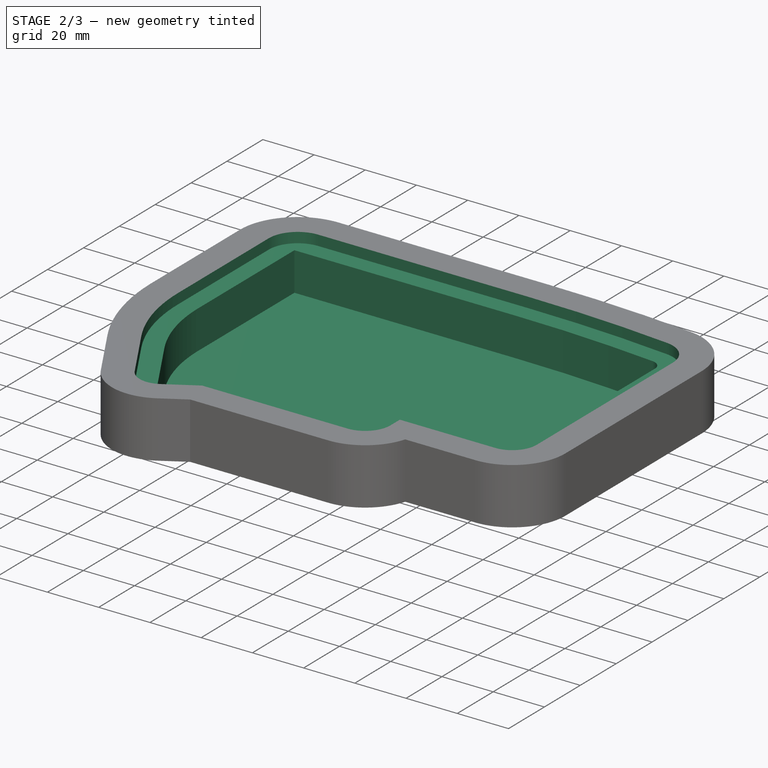
[diagram: stage 2 of 3 — iso view after this stage's code; geometry added in this stage tinted green]
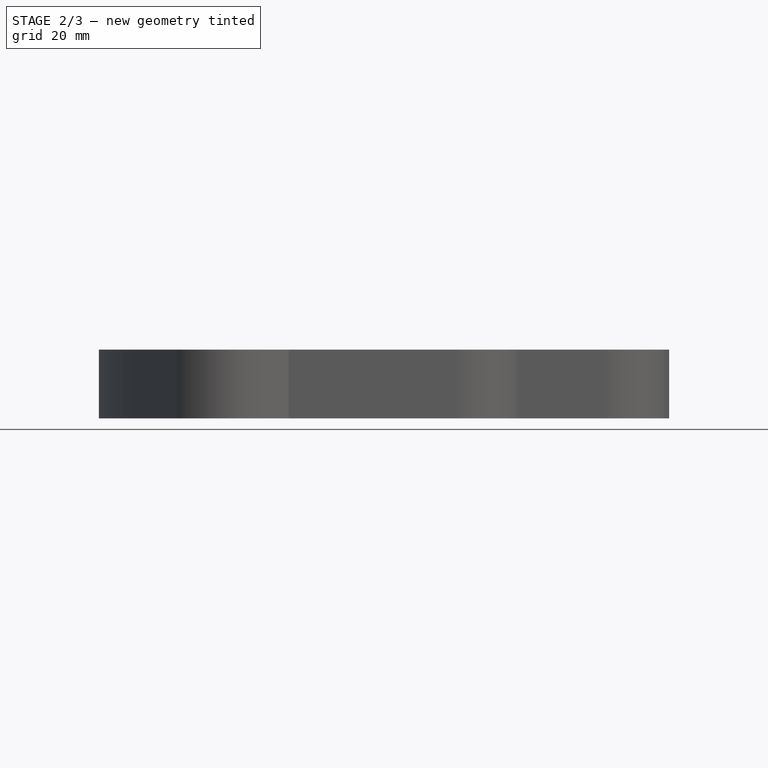
[diagram: stage 2 of 3 — front view after this stage's code; geometry added in this stage tinted green]
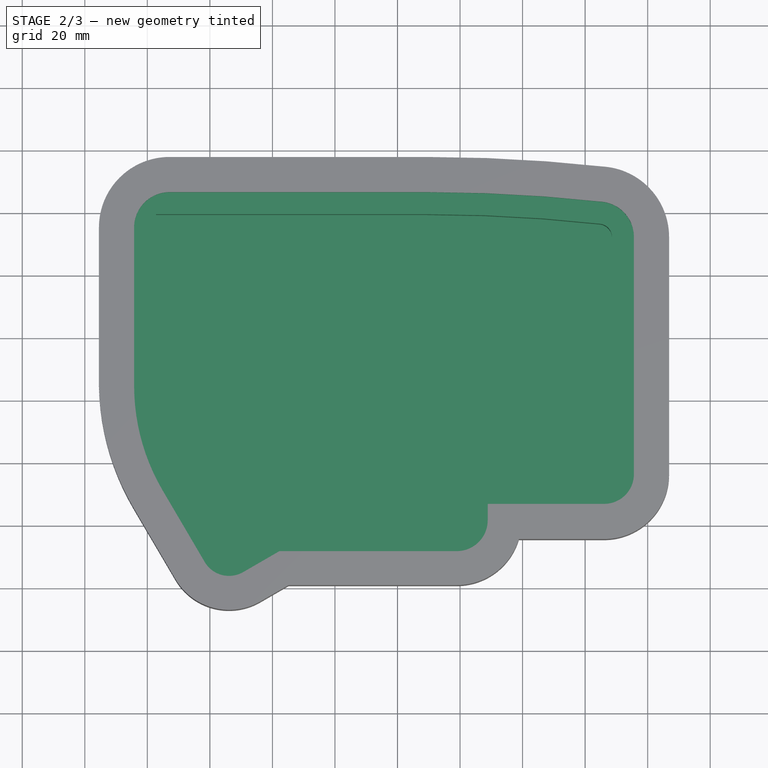
[diagram: stage 2 of 3 — top view after this stage's code; geometry added in this stage tinted green]
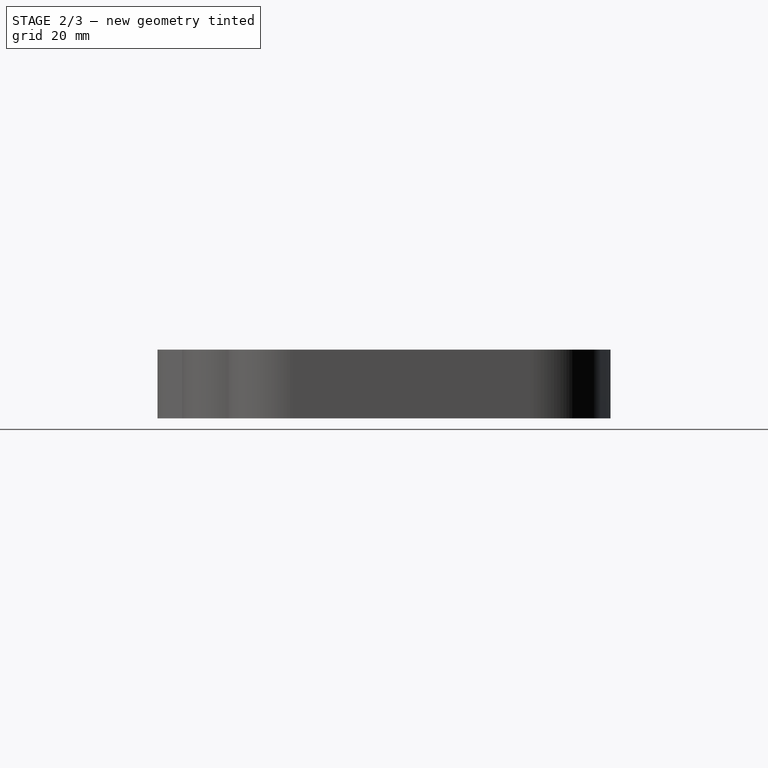
[diagram: stage 2 of 3 — right view after this stage's code; geometry added in this stage tinted green]
FEATURE [PartDesign::Pocket] Pocket
  BaseFeature = -> Pad
  Direction = (0,0,-1)
  Length = 4
  Length2 = 5
  Profile = -> Sketch010
  ReferenceAxis = -> Sketch010 [N_Axis]
  Type = 0
  expr: Length = <<ss_case>>.top_plate_cutout_depth
FEATURE [Sketcher::SketchObject] Sketch011
  ExternalGeometry = -> [ShapeBinder]
  FullyConstrained = true
  MapMode = 5
  Support = -> [XY_Plane003]
  expr: Constraints[21] = <<ss_case>>.gasket_to_pcb_offset
  sketch-geometry (17):
    g0: LineSegment StartX=-37.2277 StartY=99.4249 StartZ=0 EndX=49.3877 EndY=99.4249 EndZ=0
    g1: LineSegment StartX=-37.2277 StartY=99.4249 StartZ=0 EndX=-37.2277 EndY=44.5785 EndZ=0
    g2: LineSegment StartX=-28.732 StartY=14.7727 StartZ=0 EndX=-15.279 EndY=-8.11947 EndZ=0
    g3: LineSegment StartX=-13.0464 StartY=-8.70717 StartZ=0 EndX=0.268545 EndY=-1 EndZ=0
    g4: LineSegment StartX=0.268545 StartY=-1 StartZ=0 EndX=58.9786 EndY=-1 EndZ=0
    g5: LineSegment StartX=61.4562 StartY=1.47761 StartZ=0 EndX=61.4562 EndY=13.7219 EndZ=0
    g6: LineSegment StartX=61.4562 StartY=13.7219 StartZ=0 EndX=106.097 EndY=13.7219 EndZ=0
    g7: LineSegment StartX=108.597 StartY=16.2219 StartZ=0 EndX=108.597 EndY=92.0749 EndZ=0
    g8: ArcOfCircle CenterX=24.5137 CenterY=46.0634 CenterZ=0 NormalX=0 NormalY=0 NormalZ=1 AngleXU=0 Radius=61.7592 StartAngle=3.16564 EndAngle=3.67289
    g9: ArcOfCircle CenterX=49.3877 CenterY=-404.987 CenterZ=0 NormalX=0 NormalY=0 NormalZ=1 AngleXU=0 Radius=504.412 StartAngle=1.46083 EndAngle=1.5708
    g10: ArcOfCircle CenterX=104.267 CenterY=92.0749 CenterZ=0 NormalX=0 NormalY=0 NormalZ=1 AngleXU=0 Radius=4.32961 StartAngle=8e-16 EndAngle=1.46083
    g11: LineSegment StartX=49.3877 StartY=99.4249 StartZ=0 EndX=49.3877 EndY=105.425 EndZ=0
    g12: ArcOfCircle CenterX=106.097 CenterY=16.2219 CenterZ=0 NormalX=0 NormalY=0 NormalZ=1 AngleXU=0 Radius=2.5 StartAngle=4.71239 EndAngle=6.28319
    g13: ArcOfCircle CenterX=58.9786 CenterY=1.47761 CenterZ=0 NormalX=0 NormalY=0 NormalZ=1 AngleXU=0 Radius=2.47761 StartAngle=4.71239 EndAngle=6.28319
    g14: ArcOfCircle CenterX=-13.8669 CenterY=-7.28964 CenterZ=0 NormalX=0 NormalY=0 NormalZ=1 AngleXU=0 Radius=1.63788 StartAngle=3.67289 EndAngle=5.2371
    g15: LineSegment StartX=-28.732 StartY=14.7727 StartZ=0 EndX=-33.9049 EndY=11.7328 EndZ=0
    g16: LineSegment StartX=61.4562 StartY=1.47761 StartZ=0 EndX=67.4562 EndY=1.47761 EndZ=0
  constraints (39):
    c: Horizontal(g0)
    c: Coincident(g0,g1)
    c: Vertical(g1)
    c: Coincident(g3,g4)
    c: Horizontal(g4)
    c: Coincident(g5,g6)
    c: Horizontal(g6)
    c: Vertical(g7)
    c: Horizontal(g1,g-6)
    c: Coincident(g8,g-4)
    c: Coincident(g8,g2)
    c: Coincident(g8,g1)
    c: Parallel(g2,g-3)
    c: Parallel(g3,g-18)
    c: Coincident(g9,g-10)
    c: Coincident(g10,g-11)
    c: Tangent(g10,g9) = -1.5708
    c: Tangent(g9,g0) = 1.5708
    c: Tangent(g10,g7) = -1.5708
    c: Coincident(g11,g0)
    c: Coincident(g11,g-10)
    c: DistanceY(g11,g11) = 6
    c: Tangent(g6,g12) = -1.5708
    c: Tangent(g7,g12) = -1.5708
    c: Coincident(g12,g-13)
    c: Tangent(g5,g13) = -1.5708
    c: Tangent(g4,g13) = -1.5708
    c: Coincident(g13,g-16)
    c: Vertical(g5)
    c: Tangent(g3,g14) = -1.5708
    c: Tangent(g2,g14) = -1.5708
    c: Coincident(g14,g-19)
    c: Coincident(g15,g2)
    c: Coincident(g15,g-4)
    c: Perpendicular(g-3,g15)
    c: Equal(g15,g11)
    c: Coincident(g16,g5)
    c: Coincident(g16,g-16)
    c: Equal(g16,g11)
FEATURE [PartDesign::Pocket] Pocket001
  BaseFeature = -> Pocket
  Direction = (0,0,-1)
  Length = 19
  Length2 = 5
  Profile = -> Sketch011
  ReferenceAxis = -> Sketch011 [N_Axis]
  Type = 0
  expr: Length = <<ss_case>>.base_thickness - <<ss_case>>.wall_thickness
FEATURE [PartDesign::Body] Body001  label="pcb_master"
  Group = -> [ShapeBinder001,Sketch,ShapeBinder,Sketch009,Pad,Sketch010,Pocket,Sketch011,Pocket001]
  Origin = -> Origin003
  Tip = -> Pocket001
FEATURE [App::Part] Part001  label="case_base"
  Group = -> [Body001,Spreadsheet001]
  Origin = -> Origin002
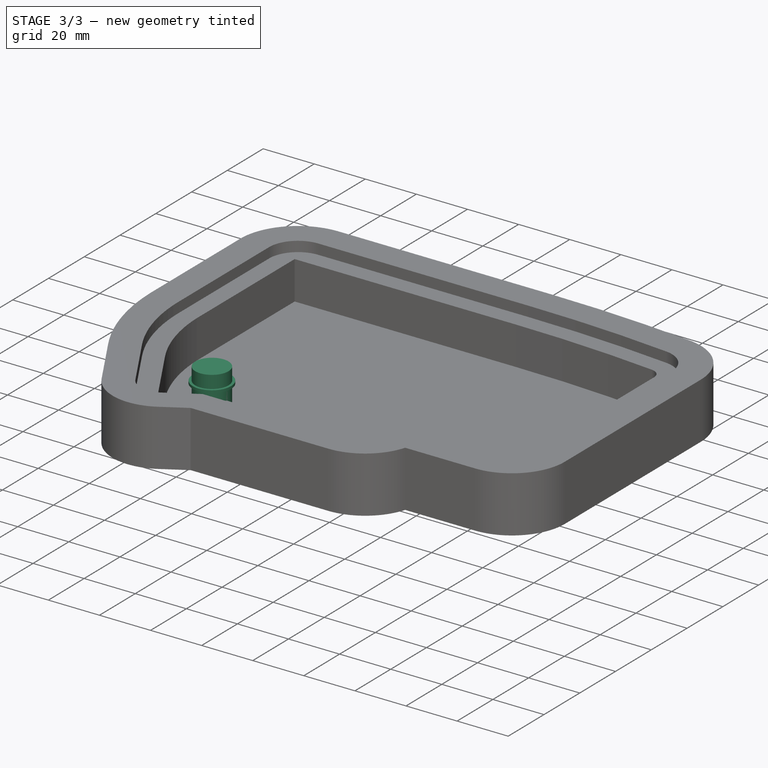
[diagram: stage 3 of 3 — iso view after this stage's code; geometry added in this stage tinted green]
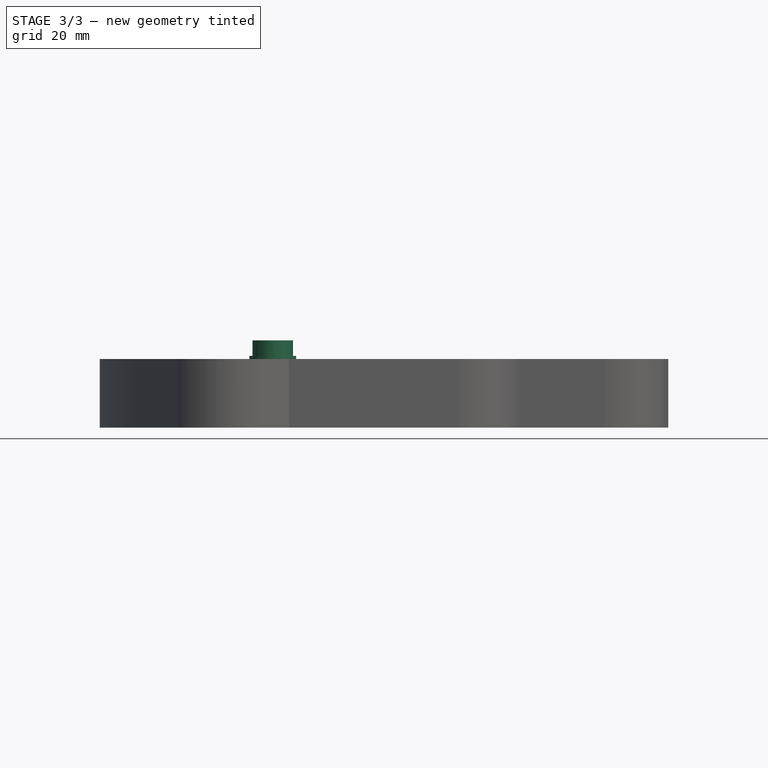
[diagram: stage 3 of 3 — front view after this stage's code; geometry added in this stage tinted green]
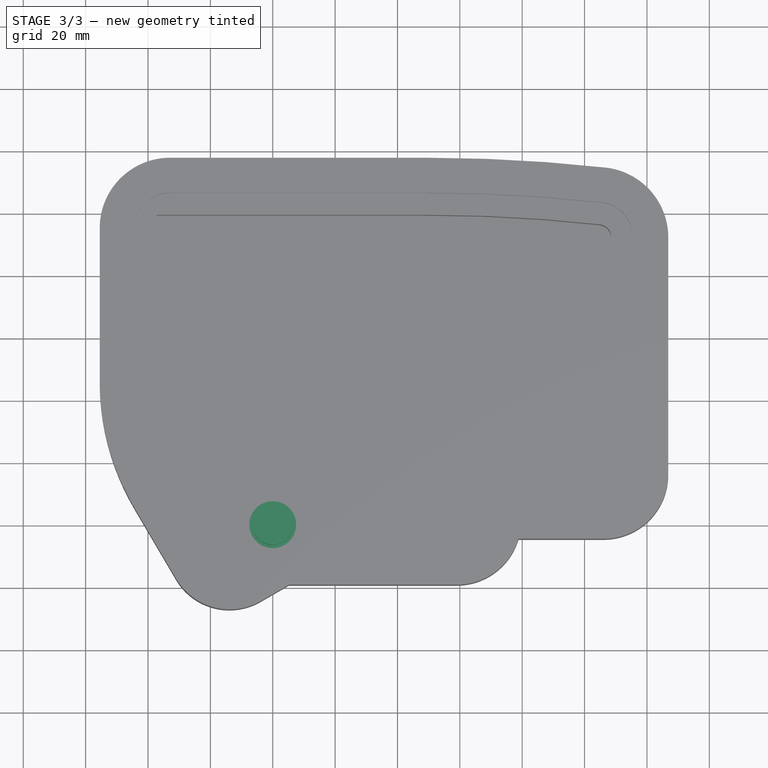
[diagram: stage 3 of 3 — top view after this stage's code; geometry added in this stage tinted green]
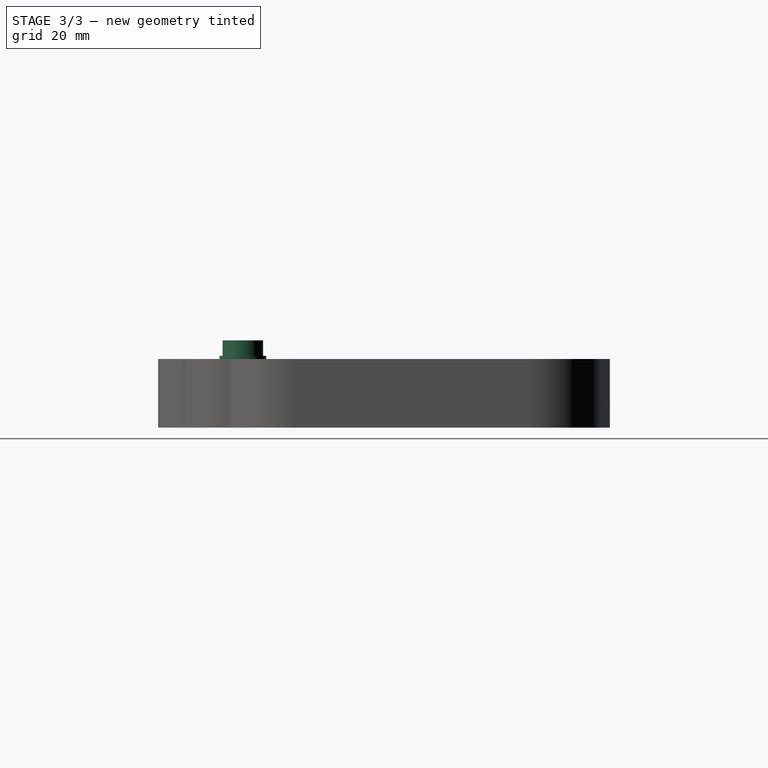
[diagram: stage 3 of 3 — right view after this stage's code; geometry added in this stage tinted green]
FEATURE [App::DocumentObjectGroup] Board_Geoms
FEATURE [Spreadsheet::Sheet] Spreadsheet  label="ss_top_plate"
  cells = A1='gasket_width; B1(gasket_width)=7; A2='hole_radius; B2(hole_radius)=5; A3='top_spline_x; B3(top_spline_x)=33.45; A4='top_spline_y; B4(top_spline_y)=3.16; A5='bottom_spline_x; B5(bottom_spline_x)=25.49; A6='bottom_spline_y; B6(bottom_spline_y)=28.47; A7='thickness; B7(thickness)=3
FEATURE [PartDesign::CoordinateSystem] Local_CS_f218
  AttacherType = Attacher::AttachEngine3D
  MapMode = 2
  Support = -> [X_Axis004]
FEATURE [Part::Feature] Pcb_f218
  Placement = pos=(-117.862,135.511,1.6) rot=(0,0,1;0rad)
  shape: bbox 142.5 x 106.3 x 1.6 mm, 823 faces (baked)
FEATURE [Sketcher::SketchObject] PCB_Sketch_f218
  FullyConstrained = false
  sketch-geometry (120):
    g0: LineSegment StartX=116.187 StartY=-136.481 StartZ=0 EndX=117.862 EndY=-135.511 EndZ=0
    g1: LineSegment StartX=114.511 StartY=-137.451 StartZ=0 EndX=116.187 EndY=-136.481 EndZ=0
    g2: LineSegment StartX=82.9375 StartY=-50.7506 StartZ=0 EndX=82.9375 EndY=-44.4437 EndZ=0
    g3: LineSegment StartX=82.9375 StartY=-57.0576 StartZ=0 EndX=82.9375 EndY=-50.7506 EndZ=0
    g4: LineSegment StartX=115.212 StartY=-37.0868 StartZ=0 EndX=104.804 EndY=-37.0868 EndZ=0
    g5: LineSegment StartX=218.692 StartY=-120.79 StartZ=0 EndX=223.96 EndY=-120.79 EndZ=0
    g6: LineSegment StartX=213.425 StartY=-120.79 StartZ=0 EndX=218.692 EndY=-120.79 EndZ=0
    g7: LineSegment StartX=208.157 StartY=-120.79 StartZ=0 EndX=213.425 EndY=-120.79 EndZ=0
    g8: LineSegment StartX=202.89 StartY=-120.79 StartZ=0 EndX=208.157 EndY=-120.79 EndZ=0
    g9: LineSegment StartX=197.622 StartY=-120.79 StartZ=0 EndX=202.89 EndY=-120.79 EndZ=0
    g10: LineSegment StartX=192.355 StartY=-120.79 StartZ=0 EndX=197.622 EndY=-120.79 EndZ=0
    g11: LineSegment StartX=187.087 StartY=-120.79 StartZ=0 EndX=192.355 EndY=-120.79 EndZ=0
    g12: LineSegment StartX=181.819 StartY=-120.79 StartZ=0 EndX=187.087 EndY=-120.79 EndZ=0
    g13: LineSegment StartX=181.114 StartY=-120.861 StartZ=0 EndX=181.819 EndY=-120.79 EndZ=0
    g14: LineSegment StartX=180.456 StartY=-121.065 StartZ=0 EndX=181.114 EndY=-120.861 EndZ=0
    g15: LineSegment StartX=179.862 StartY=-121.387 StartZ=0 EndX=180.456 EndY=-121.065 EndZ=0
    g16: LineSegment StartX=179.344 StartY=-121.814 StartZ=0 EndX=179.862 EndY=-121.387 EndZ=0
    g17: LineSegment StartX=178.917 StartY=-122.332 StartZ=0 EndX=179.344 EndY=-121.814 EndZ=0
    g18: LineSegment StartX=178.594 StartY=-122.927 StartZ=0 EndX=178.917 EndY=-122.332 EndZ=0
    g19: LineSegment StartX=178.39 StartY=-123.584 StartZ=0 EndX=178.594 EndY=-122.927 EndZ=0
    g20: LineSegment StartX=178.319 StartY=-124.29 StartZ=0 EndX=178.39 EndY=-123.584 EndZ=0
    g21: LineSegment StartX=199.808 StartY=-38.1705 StartZ=0 EndX=189.92 EndY=-37.5854 EndZ=0
    g22: LineSegment StartX=208.421 StartY=-38.9456 StartZ=0 EndX=199.808 EndY=-38.1705 EndZ=0
    g23: LineSegment StartX=215.526 StartY=-39.8852 StartZ=0 EndX=208.421 EndY=-38.9456 EndZ=0
    g24: LineSegment StartX=220.889 StartY=-40.9638 StartZ=0 EndX=215.526 EndY=-39.8852 EndZ=0
    g25: LineSegment StartX=178.99 StartY=-37.2157 StartZ=0 EndX=167.251 EndY=-37.0868 EndZ=0
    g26: LineSegment StartX=189.92 StartY=-37.5854 StartZ=0 EndX=178.99 EndY=-37.2157 EndZ=0
    g27: LineSegment StartX=177.658 StartY=-135.256 StartZ=0 EndX=177.404 EndY=-135.394 EndZ=0
    g28: LineSegment StartX=177.88 StartY=-135.073 StartZ=0 EndX=177.658 EndY=-135.256 EndZ=0
    g29: LineSegment StartX=178.063 StartY=-134.851 StartZ=0 EndX=177.88 EndY=-135.073 EndZ=0
    g30: LineSegment StartX=178.202 StartY=-134.596 StartZ=0 EndX=178.063 EndY=-134.851 EndZ=0
    g31: LineSegment StartX=178.289 StartY=-134.314 StartZ=0 EndX=178.202 EndY=-134.596 EndZ=0
    g32: LineSegment StartX=178.319 StartY=-134.012 StartZ=0 EndX=178.289 EndY=-134.314 EndZ=0
    g33: LineSegment StartX=225.46 StartY=-52.9184 StartZ=0 EndX=225.46 EndY=-62.4 EndZ=0
    g34: LineSegment StartX=225.46 StartY=-43.4368 StartZ=0 EndX=225.46 EndY=-52.9184 EndZ=0
    g35: LineSegment StartX=82.9375 StartY=-69.6714 StartZ=0 EndX=82.9375 EndY=-63.3645 EndZ=0
    g36: LineSegment StartX=82.9375 StartY=-75.9784 StartZ=0 EndX=82.9375 EndY=-69.6714 EndZ=0
    g37: LineSegment StartX=82.9375 StartY=-82.2853 StartZ=0 EndX=82.9375 EndY=-75.9784 EndZ=0
    g38: LineSegment StartX=82.9375 StartY=-88.5922 StartZ=0 EndX=82.9375 EndY=-82.2853 EndZ=0
    g39: LineSegment StartX=104.804 StartY=-37.0868 StartZ=0 EndX=94.396 EndY=-37.0868 EndZ=0
    g40: LineSegment StartX=125.62 StartY=-37.0868 StartZ=0 EndX=115.212 EndY=-37.0868 EndZ=0
    g41: LineSegment StartX=136.027 StartY=-37.0868 StartZ=0 EndX=125.62 EndY=-37.0868 EndZ=0
    g42: LineSegment StartX=146.435 StartY=-37.0868 StartZ=0 EndX=136.027 EndY=-37.0868 EndZ=0
    g43: LineSegment StartX=156.843 StartY=-37.0868 StartZ=0 EndX=146.435 EndY=-37.0868 EndZ=0
    g44: LineSegment StartX=167.251 StartY=-37.0868 StartZ=0 EndX=156.843 EndY=-37.0868 EndZ=0
    g45: LineSegment StartX=83.4009 StartY=-37.266 StartZ=0 EndX=83.5793 EndY=-37.1692 EndZ=0
    g46: LineSegment StartX=83.2456 StartY=-37.3941 StartZ=0 EndX=83.4009 EndY=-37.266 EndZ=0
    g47: LineSegment StartX=83.1174 StartY=-37.5495 StartZ=0 EndX=83.2456 EndY=-37.3941 EndZ=0
    g48: LineSegment StartX=83.0207 StartY=-37.7279 StartZ=0 EndX=83.1174 EndY=-37.5495 EndZ=0
    g49: LineSegment StartX=82.9595 StartY=-37.925 StartZ=0 EndX=83.0207 EndY=-37.7279 EndZ=0
    g50: LineSegment StartX=82.9382 StartY=-38.1368 StartZ=0 EndX=82.9595 EndY=-37.925 EndZ=0
    g51: LineSegment StartX=83.7765 StartY=-37.1081 StartZ=0 EndX=83.9882 EndY=-37.0868 EndZ=0
    g52: LineSegment StartX=83.5793 StartY=-37.1692 StartZ=0 EndX=83.7765 EndY=-37.1081 EndZ=0
    g53: LineSegment StartX=94.396 StartY=-37.0868 StartZ=0 EndX=83.9882 EndY=-37.0868 EndZ=0
    g54: LineSegment StartX=82.9375 StartY=-63.3645 StartZ=0 EndX=82.9375 EndY=-57.0576 EndZ=0
    g55: LineSegment StartX=82.9375 StartY=-44.4437 StartZ=0 EndX=82.9382 EndY=-38.1368 EndZ=0
    g56: LineSegment StartX=88.2918 StartY=-116.318 StartZ=0 EndX=89.9933 EndY=-119.99 EndZ=0
    g57: LineSegment StartX=86.8631 StartY=-112.531 StartZ=0 EndX=88.2918 EndY=-116.318 EndZ=0
    g58: LineSegment StartX=85.688 StartY=-108.649 StartZ=0 EndX=86.8631 EndY=-112.531 EndZ=0
    g59: LineSegment StartX=84.7471 StartY=-104.695 StartZ=0 EndX=85.688 EndY=-108.649 EndZ=0
    g60: LineSegment StartX=84.021 StartY=-100.691 StartZ=0 EndX=84.7471 EndY=-104.695 EndZ=0
    g61: LineSegment StartX=83.4903 StartY=-96.6577 StartZ=0 EndX=84.021 EndY=-100.691 EndZ=0
    g62: LineSegment StartX=83.1357 StartY=-92.6176 StartZ=0 EndX=83.4903 EndY=-96.6577 EndZ=0
    g63: LineSegment StartX=82.9375 StartY=-88.5922 StartZ=0 EndX=83.1357 EndY=-92.6176 EndZ=0
    g64: LineSegment StartX=104.289 StartY=-143.357 StartZ=0 EndX=104.457 EndY=-143.272 EndZ=0
    g65: LineSegment StartX=104.13 StartY=-143.404 StartZ=0 EndX=104.289 EndY=-143.357 EndZ=0
    g66: LineSegment StartX=103.981 StartY=-143.414 StartZ=0 EndX=104.13 EndY=-143.404 EndZ=0
    g67: LineSegment StartX=103.842 StartY=-143.386 StartZ=0 EndX=103.981 EndY=-143.414 EndZ=0
    g68: LineSegment StartX=103.714 StartY=-143.323 StartZ=0 EndX=103.842 EndY=-143.386 EndZ=0
    g69: LineSegment StartX=103.597 StartY=-143.223 StartZ=0 EndX=103.714 EndY=-143.323 EndZ=0
    g70: LineSegment StartX=103.492 StartY=-143.088 StartZ=0 EndX=103.597 EndY=-143.223 EndZ=0
    g71: LineSegment StartX=103.398 StartY=-142.919 StartZ=0 EndX=103.492 EndY=-143.088 EndZ=0
    g72: LineSegment StartX=112.835 StartY=-138.421 StartZ=0 EndX=114.511 EndY=-137.451 EndZ=0
    g73: LineSegment StartX=111.16 StartY=-139.391 StartZ=0 EndX=112.835 EndY=-138.421 EndZ=0
    g74: LineSegment StartX=109.484 StartY=-140.361 StartZ=0 EndX=111.16 EndY=-139.391 EndZ=0
    g75: LineSegment StartX=107.808 StartY=-141.331 StartZ=0 EndX=109.484 EndY=-140.361 EndZ=0
    g76: LineSegment StartX=106.132 StartY=-142.302 StartZ=0 EndX=107.808 EndY=-141.331 EndZ=0
    g77: LineSegment StartX=104.457 StartY=-143.272 StartZ=0 EndX=106.132 EndY=-142.302 EndZ=0
    g78: LineSegment StartX=101.723 StartY=-140.053 StartZ=0 EndX=103.398 EndY=-142.919 EndZ=0
    g79: LineSegment StartX=100.047 StartY=-137.186 StartZ=0 EndX=101.723 EndY=-140.053 EndZ=0
    g80: LineSegment StartX=98.3713 StartY=-134.32 StartZ=0 EndX=100.047 EndY=-137.186 EndZ=0
    g81: LineSegment StartX=96.6956 StartY=-131.454 StartZ=0 EndX=98.3713 EndY=-134.32 EndZ=0
    g82: LineSegment StartX=95.02 StartY=-128.587 StartZ=0 EndX=96.6956 EndY=-131.454 EndZ=0
    g83: LineSegment StartX=93.3443 StartY=-125.721 StartZ=0 EndX=95.02 EndY=-128.587 EndZ=0
    g84: LineSegment StartX=91.6686 StartY=-122.855 StartZ=0 EndX=93.3443 EndY=-125.721 EndZ=0
    g85: LineSegment StartX=89.9933 StartY=-119.99 StartZ=0 EndX=91.6686 EndY=-122.855 EndZ=0
    g86: LineSegment StartX=169.45 StartY=-135.512 StartZ=0 EndX=176.819 EndY=-135.512 EndZ=0
    g87: LineSegment StartX=162.08 StartY=-135.512 StartZ=0 EndX=169.45 EndY=-135.512 EndZ=0
    g88: LineSegment StartX=154.711 StartY=-135.512 StartZ=0 EndX=162.08 EndY=-135.512 EndZ=0
    g89: LineSegment StartX=147.341 StartY=-135.512 StartZ=0 EndX=154.711 EndY=-135.512 EndZ=0
    g90: LineSegment StartX=139.972 StartY=-135.512 StartZ=0 EndX=147.341 EndY=-135.512 EndZ=0
    g91: LineSegment StartX=132.602 StartY=-135.512 StartZ=0 EndX=139.972 EndY=-135.512 EndZ=0
    g92: LineSegment StartX=125.233 StartY=-135.512 StartZ=0 EndX=132.602 EndY=-135.512 EndZ=0
    g93: LineSegment StartX=117.862 StartY=-135.511 StartZ=0 EndX=125.233 EndY=-135.512 EndZ=0
    g94: LineSegment StartX=178.319 StartY=-132.816 StartZ=0 EndX=178.319 EndY=-134.012 EndZ=0
    g95: LineSegment StartX=178.319 StartY=-131.598 StartZ=0 EndX=178.319 EndY=-132.816 EndZ=0
    g96: LineSegment StartX=178.319 StartY=-130.38 StartZ=0 EndX=178.319 EndY=-131.598 EndZ=0
    g97: LineSegment StartX=178.319 StartY=-129.162 StartZ=0 EndX=178.319 EndY=-130.38 EndZ=0
    g98: LineSegment StartX=178.319 StartY=-127.944 StartZ=0 EndX=178.319 EndY=-129.162 EndZ=0
    g99: LineSegment StartX=178.319 StartY=-126.726 StartZ=0 EndX=178.319 EndY=-127.944 EndZ=0
    g100: LineSegment StartX=178.319 StartY=-125.508 StartZ=0 EndX=178.319 EndY=-126.726 EndZ=0
    g101: LineSegment StartX=178.319 StartY=-124.29 StartZ=0 EndX=178.319 EndY=-125.508 EndZ=0
    g102: LineSegment StartX=177.122 StartY=-135.481 StartZ=0 EndX=176.819 EndY=-135.512 EndZ=0
    g103: LineSegment StartX=177.404 StartY=-135.394 StartZ=0 EndX=177.122 EndY=-135.481 EndZ=0
    g104: LineSegment StartX=224.278 StartY=-42.1562 StartZ=0 EndX=220.889 EndY=-40.9638 EndZ=0
    g105: LineSegment StartX=225.46 StartY=-43.4368 StartZ=0 EndX=224.278 EndY=-42.1562 EndZ=0
    g106: LineSegment StartX=224.262 StartY=-120.759 StartZ=0 EndX=223.96 EndY=-120.79 EndZ=0
    g107: LineSegment StartX=224.544 StartY=-120.672 StartZ=0 EndX=224.262 EndY=-120.759 EndZ=0
    g108: LineSegment StartX=224.799 StartY=-120.534 StartZ=0 EndX=224.544 EndY=-120.672 EndZ=0
    g109: LineSegment StartX=225.021 StartY=-120.351 StartZ=0 EndX=224.799 EndY=-120.534 EndZ=0
    g110: LineSegment StartX=225.204 StartY=-120.129 StartZ=0 EndX=225.021 EndY=-120.351 EndZ=0
    g111: LineSegment StartX=225.342 StartY=-119.874 StartZ=0 EndX=225.204 EndY=-120.129 EndZ=0
    g112: LineSegment StartX=225.43 StartY=-119.592 StartZ=0 EndX=225.342 EndY=-119.874 EndZ=0
    g113: LineSegment StartX=225.46 StartY=-119.29 StartZ=0 EndX=225.43 EndY=-119.592 EndZ=0
    g114: LineSegment StartX=225.46 StartY=-109.808 StartZ=0 EndX=225.46 EndY=-119.29 EndZ=0
    g115: LineSegment StartX=225.46 StartY=-100.326 StartZ=0 EndX=225.46 EndY=-109.808 EndZ=0
    g116: LineSegment StartX=225.46 StartY=-90.8449 StartZ=0 EndX=225.46 EndY=-100.326 EndZ=0
    g117: LineSegment StartX=225.46 StartY=-81.3632 StartZ=0 EndX=225.46 EndY=-90.8449 EndZ=0
    g118: LineSegment StartX=225.46 StartY=-71.8816 StartZ=0 EndX=225.46 EndY=-81.3632 EndZ=0
    g119: LineSegment StartX=225.46 StartY=-62.4 StartZ=0 EndX=225.46 EndY=-71.8816 EndZ=0
  constraints (120):
    c: Coincident(g38,g63)
    c: Coincident(g37,g38)
    c: Coincident(g36,g37)
    c: Coincident(g35,g36)
    c: Coincident(g35,g54)
    c: Coincident(g3,g54)
    c: Coincident(g2,g3)
    c: Coincident(g2,g55)
    c: Coincident(g50,g55)
    c: Coincident(g49,g50)
    c: Coincident(g48,g49)
    c: Coincident(g47,g48)
    c: Coincident(g62,g63)
    c: Coincident(g46,g47)
    c: Coincident(g45,g46)
    c: Coincident(g61,g62)
    c: Coincident(g45,g52)
    c: Coincident(g51,g52)
    c: Coincident(g51,g53)
    c: Coincident(g60,g61)
    c: Coincident(g59,g60)
    c: Coincident(g58,g59)
    c: Coincident(g57,g58)
    c: Coincident(g56,g57)
    c: Coincident(g56,g85)
    c: Coincident(g84,g85)
    c: Coincident(g83,g84)
    c: Coincident(g39,g53)
    c: Coincident(g82,g83)
    c: Coincident(g81,g82)
    c: Coincident(g80,g81)
    c: Coincident(g79,g80)
    c: Coincident(g78,g79)
    c: Coincident(g71,g78)
    c: Coincident(g70,g71)
    c: Coincident(g69,g70)
    c: Coincident(g68,g69)
    c: Coincident(g67,g68)
    c: Coincident(g66,g67)
    c: Coincident(g65,g66)
    c: Coincident(g64,g65)
    c: Coincident(g64,g77)
    c: Coincident(g4,g39)
    c: Coincident(g76,g77)
    c: Coincident(g75,g76)
    c: Coincident(g74,g75)
    c: Coincident(g73,g74)
    c: Coincident(g72,g73)
    c: Coincident(g1,g72)
    c: Coincident(g4,g40)
    c: Coincident(g0,g1)
    c: Coincident(g0,g93)
    c: Coincident(g92,g93)
    c: Coincident(g40,g41)
    c: Coincident(g91,g92)
    c: Coincident(g41,g42)
    c: Coincident(g90,g91)
    c: Coincident(g42,g43)
    c: Coincident(g89,g90)
    c: Coincident(g88,g89)
    c: Coincident(g43,g44)
    c: Coincident(g87,g88)
    c: Coincident(g25,g44)
    c: Coincident(g86,g87)
    c: Coincident(g86,g102)
    c: Coincident(g102,g103)
    c: Coincident(g27,g103)
    c: Coincident(g27,g28)
    c: Coincident(g28,g29)
    c: Coincident(g29,g30)
    c: Coincident(g30,g31)
    c: Coincident(g31,g32)
    c: Coincident(g32,g94)
    c: Coincident(g94,g95)
    c: Coincident(g95,g96)
    c: Coincident(g96,g97)
    c: Coincident(g97,g98)
    c: Coincident(g98,g99)
    c: Coincident(g99,g100)
    c: Coincident(g100,g101)
    c: Coincident(g20,g101)
    c: Coincident(g19,g20)
    c: Coincident(g18,g19)
    c: Coincident(g17,g18)
    c: Coincident(g25,g26)
    c: Coincident(g16,g17)
    c: Coincident(g15,g16)
    c: Coincident(g14,g15)
    c: Coincident(g13,g14)
    c: Coincident(g12,g13)
    c: Coincident(g11,g12)
    c: Coincident(g21,g26)
    c: Coincident(g10,g11)
    c: Coincident(g9,g10)
    c: Coincident(g21,g22)
    c: Coincident(g8,g9)
    c: Coincident(g7,g8)
    c: Coincident(g22,g23)
    c: Coincident(g6,g7)
    c: Coincident(g23,g24)
    c: Coincident(g5,g6)
    c: Coincident(g24,g104)
    c: Coincident(g5,g106)
    c: Coincident(g106,g107)
    c: Coincident(g104,g105)
    c: Coincident(g107,g108)
    c: Coincident(g108,g109)
    c: Coincident(g109,g110)
    c: Coincident(g110,g111)
    c: Coincident(g111,g112)
    c: Coincident(g112,g113)
    c: Coincident(g113,g114)
    c: Coincident(g114,g115)
    c: Coincident(g115,g116)
    c: Coincident(g116,g117)
    c: Coincident(g117,g118)
    c: Coincident(g118,g119)
    c: Coincident(g33,g119)
    c: Coincident(g33,g34)
    c: Coincident(g34,g105)
FEATURE [App::Part] Board_Geoms_f218
  Group = -> [Pcb_f218,PCB_Sketch_f218]
  Origin = -> Origin005
FEATURE [App::Part] Step_Models_f218
  Origin = -> Origin006
FEATURE [App::Part] Board_f218  label="Lily58_Pro"
  Group = -> [Local_CS_f218,Board_Geoms_f218,Step_Models_f218]
  Origin = -> Origin004
FEATURE [Spreadsheet::Sheet] Spreadsheet001  label="ss_case"
  cells = A1='wall_thickness; B1(wall_thickness)=3; D1='screw_diameter; E1(screw_diameter)=3; F1='pcb_thickness; G1(pcb_thickness)=1.6; I1='mx_total_heigh; J1(mx_total_height)=11.6; A2='plate_offset; B2(plate_offset)=1; D2='gasket_thickness; E2(gasket_thickness)=2; F2='hotswap thickenss; G2(hs_offset)=1.8; I2='mx_base_to_flange; J2(mx_base_to_flange)=5; A3='flange_thickness; B3(flange_thickness)=2; F3='top_plate_offset; G3(top_plate_offset)==hs_offset + mx_base_to_flange - <<ss_top_plate>>.thickness; I3='mx_flange_top; J3(mx_flange_to_top)==mx_total_height - mx_base_to_flange; A4='flange_offset; B4(flange_offset)=0.25; F4='pcb_ass_thickness; G4(pcb_ass_thickness)==pcb_thickness + <<ss_top_plate>>.thickness + top_plate_offset; A5='top_plate_cutout_depth; B5(top_plate_cutout_depth)==<<ss_top_plate>>.thickness + 1; F5='pcb_pocket_offset; G5(pcb_pocket_offset)=1; F6='gasket_to_pcb_offset; G6(gasket_to_pcb_offset)==<<ss_top_plate>>.gasket_width - 1; A8='total_top_plate_offset; B8(total_top_plate_offset)==<<ss_top_plate>>.gasket_width + plate_offset; E8='screw_head_heigh; F8(screw_head_height)=3; A9='wall_offset; B9(wall_offset)==total_top_plate_offset + flange_thickness * 2 + flange_offset; A10='base_thickness; B10(base_thickness)==<<ss_gx12>>.od + 2 * wall_thickness + <<ss_top_plate>>.thickness
FEATURE [Spreadsheet::Sheet] Spreadsheet002  label="ss_gx12"
  cells = A1='od; B1(od)=13; A2='flange_od; B2(flange_od)=15; A3='front_to_flange; B3(front_to_flange)=5; A4='total_length; B4(total_length)=16; A5='flange_thickness; B5(flange_thickness)=1
FEATURE [Sketcher::SketchObject] Sketch004
  FullyConstrained = true
  MapMode = 5
  Support = -> [XY_Plane008]
  expr: Constraints[1] = <<ss_gx12>>.od
  sketch-geometry (1):
    g0: Circle CenterX=0 CenterY=0 CenterZ=0 NormalX=0 NormalY=0 NormalZ=1 AngleXU=0 Radius=6.5
  constraints (2):
    c: Coincident(g0,g-1)
    c: Diameter(g0) = 13
FEATURE [PartDesign::Pad] Pad002
  Direction = (0,0,1)
  Length = 6
  Length2 = 10
  Profile = -> Sketch004
  ReferenceAxis = -> Sketch004 [N_Axis]
  Type = 4
  expr: Length = <<ss_gx12>>.front_to_flange + <<ss_gx12>>.flange_thickness
  expr: Length2 = <<ss_gx12>>.total_length - <<ss_gx12>>.flange_thickness - <<ss_gx12>>.front_to_flange
FEATURE [Sketcher::SketchObject] Sketch005
  FullyConstrained = true
  MapMode = 5
  Support = -> [XY_Plane009]
  expr: Constraints[1] = <<ss_gx12>>.flange_od
  sketch-geometry (1):
    g0: Circle CenterX=0 CenterY=0 CenterZ=0 NormalX=0 NormalY=0 NormalZ=1 AngleXU=0 Radius=7.5
  constraints (2):
    c: Coincident(g0,g-1)
    c: Diameter(g0) = 15
FEATURE [PartDesign::Pad] Pad003
  BaseFeature = -> Pad002
  Direction = (0,0,1)
  Length = 1
  Length2 = 10
  Profile = -> Sketch005
  ReferenceAxis = -> Sketch005 [N_Axis]
  Type = 0
  expr: Length = <<ss_gx12>>.flange_thickness
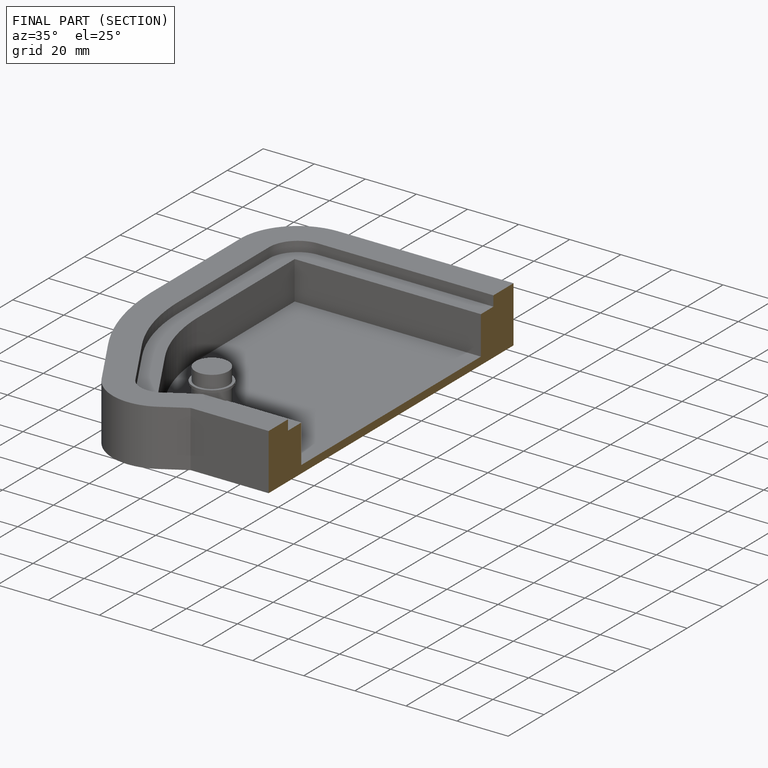
[diagram: finished part — half-section view (interior)]
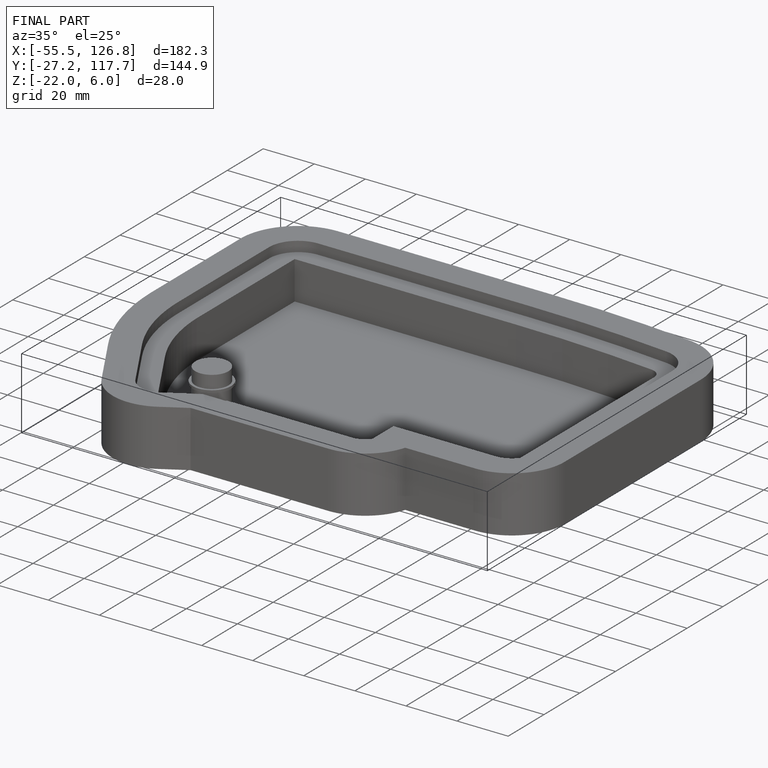
[diagram: finished part — iso view with bounding-box wireframe]
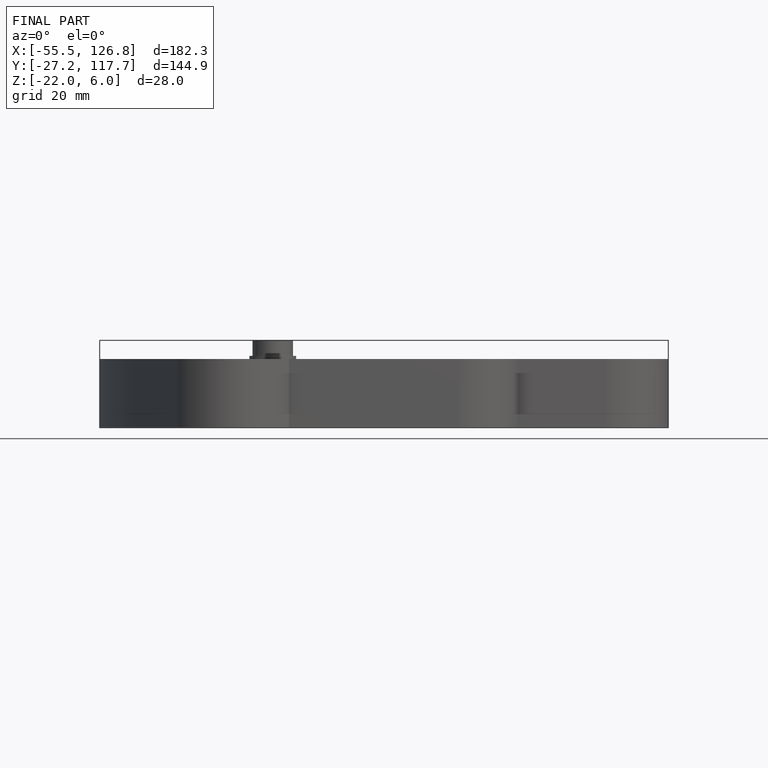
[diagram: finished part — front view with bounding-box wireframe]
